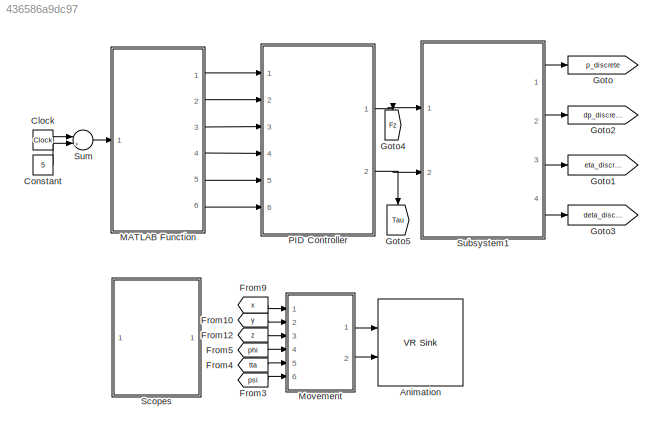
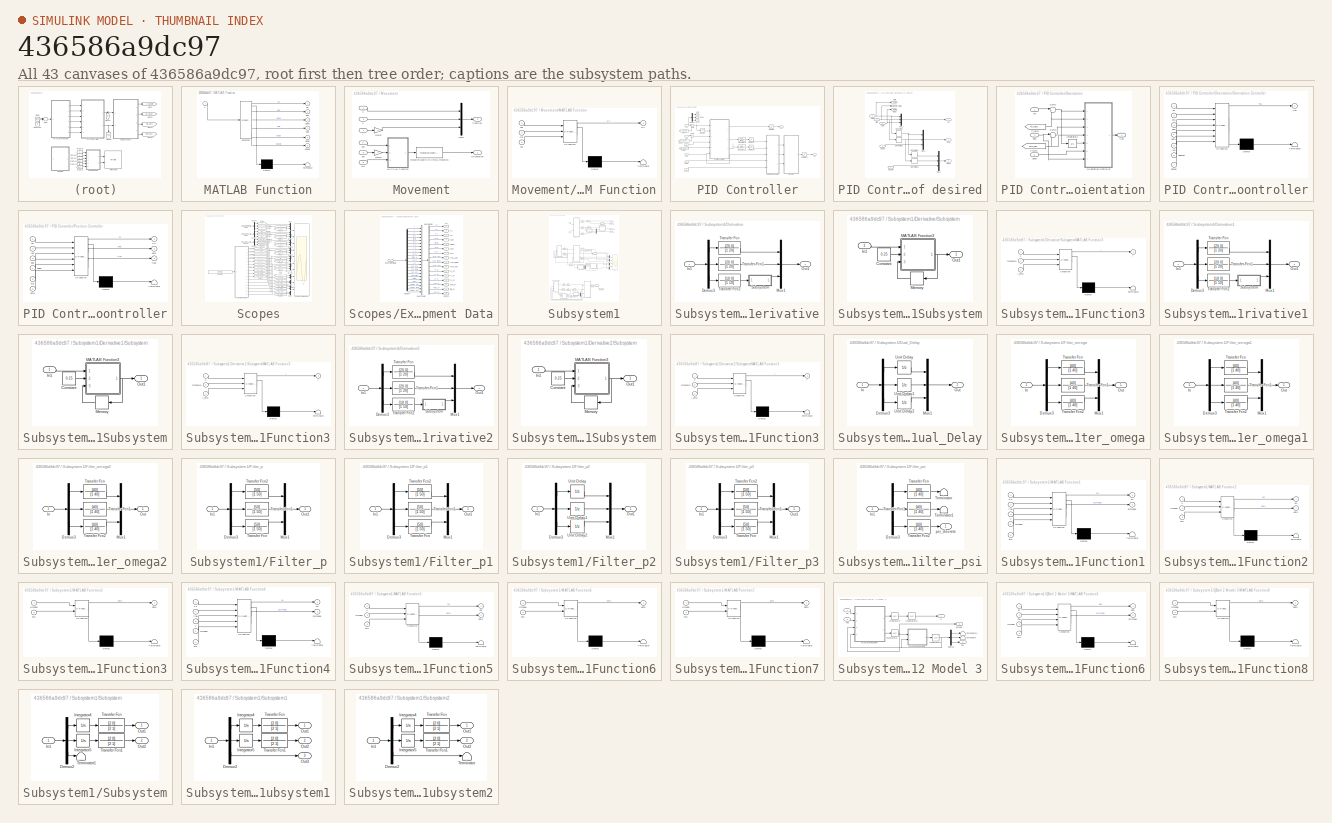
[diagram: thumbnail index - all 43 canvases of the model, root first then tree order]
MODEL slx_436586a9dc97
KIND model
CONFIG AbsTol = auto
CONFIG EnableMultiTasking = off
CONFIG FixedStep = 1e-3
CONFIG MaxStep = auto
CONFIG MinStep = auto
CONFIG RelTol = 1e-3
CONFIG SampleTimeConstraint = Unconstrained
CONFIG SolverName = ode3
CONFIG StartTime = 0.0
CONFIG StopTime = 70
BLOCK [Reference] Animation  REF=vrlib/VR Sink
  InstantiateOnLoad = on
  Ports = [2]
  SourceBlock = vrlib/VR Sink
  SourceProductBaseCode = SL
  SourceType = Virtual Reality Sink
BLOCK [Clock] Clock
BLOCK [Constant] Constant
  Value = 5
BLOCK [From] From10
  GotoTag = y
  TagVisibility = global
BLOCK [From] From12
  GotoTag = z
  TagVisibility = global
BLOCK [From] From3
  GotoTag = psi
  TagVisibility = global
BLOCK [From] From4
  GotoTag = tta
  TagVisibility = global
BLOCK [From] From5
  GotoTag = phi
  TagVisibility = global
BLOCK [From] From9
  GotoTag = x
  TagVisibility = global
BLOCK [Goto] Goto
  GotoTag = p_discrete
  TagVisibility = global
BLOCK [Goto] Goto1
  GotoTag = eta_discrete
  TagVisibility = global
BLOCK [Goto] Goto2
  GotoTag = dp_discrete
  TagVisibility = global
BLOCK [Goto] Goto3
  GotoTag = deta_discrete
  TagVisibility = global
BLOCK [Goto] Goto4
  GotoTag = Fz
  NameLocation = left
  TagVisibility = global
BLOCK [Goto] Goto5
  GotoTag = Tau
  NameLocation = left
  TagVisibility = global
BLOCK [SubSystem] MATLAB Function
  ErrorFcn = Stateflow.Translate.translate
  PermitHierarchicalResolution = ExplicitOnly
  Ports = [1, 6]
  RequestExecContextInheritance = off
  SFBlockType = MATLAB Function
  TreatAsAtomicUnit = on
BLOCK [Demux] MATLAB Function/ Demux 
  Outputs = 1
  Ports = [1, 1]
BLOCK [S-Function] MATLAB Function/ SFunction 
  EnableBusSupport = on
  FunctionName = sf_sfun
  PortCounts = [1 7]
  Ports = [1, 7]
  SFcnIsStateOwnerBlock = off
  SFunctionDeploymentMode = off
  Tag = Stateflow S-Function 1
BLOCK [Terminator] MATLAB Function/ Terminator 
BLOCK [Inport] MATLAB Function/T
BLOCK [Outport] MATLAB Function/ddpd
  Port = 3
  VectorParamsAs1DForOutWhenUnconnected = off
BLOCK [Outport] MATLAB Function/ddpsid
  Port = 6
  VectorParamsAs1DForOutWhenUnconnected = off
BLOCK [Outport] MATLAB Function/dpd
  Port = 2
  VectorParamsAs1DForOutWhenUnconnected = off
BLOCK [Outport] MATLAB Function/dpsid
  Port = 5
  VectorParamsAs1DForOutWhenUnconnected = off
BLOCK [Outport] MATLAB Function/pd
  VectorParamsAs1DForOutWhenUnconnected = off
BLOCK [Outport] MATLAB Function/psid
  Port = 4
  VectorParamsAs1DForOutWhenUnconnected = off
BLOCK [SubSystem] Movement
  Ports = [6, 2]
  RequestExecContextInheritance = off
BLOCK [Gain] Movement/Gain1
  Gain = -1
BLOCK [Gain] Movement/Gain2
  Gain = -1
BLOCK [SubSystem] Movement/MATLAB Function
  ErrorFcn = Stateflow.Translate.translate
  PermitHierarchicalResolution = ExplicitOnly
  Ports = [3, 1]
  RequestExecContextInheritance = off
  SFBlockType = MATLAB Function
  TreatAsAtomicUnit = on
BLOCK [Demux] Movement/MATLAB Function/ Demux 
  Outputs = 1
  Ports = [1, 1]
BLOCK [S-Function] Movement/MATLAB Function/ SFunction 
  EnableBusSupport = on
  FunctionName = sf_sfun
  PortCounts = [3 2]
  Ports = [3, 2]
  SFcnIsStateOwnerBlock = off
  SFunctionDeploymentMode = off
  Tag = Stateflow S-Function 2
BLOCK [Terminator] Movement/MATLAB Function/ Terminator 
BLOCK [Outport] Movement/MATLAB Function/RT
  VectorParamsAs1DForOutWhenUnconnected = off
BLOCK [Inport] Movement/MATLAB Function/phi
BLOCK [Inport] Movement/MATLAB Function/psi
  Port = 3
BLOCK [Inport] Movement/MATLAB Function/tta
  Port = 2
BLOCK [Mux] Movement/Mux7
  DisplayOption = bar
  Inputs = 3
  Ports = [3, 1]
BLOCK [Outport] Movement/Orientation
  VectorParamsAs1DForOutWhenUnconnected = off
BLOCK [Outport] Movement/Position
  Port = 2
  VectorParamsAs1DForOutWhenUnconnected = off
BLOCK [Reference] Movement/Rotation Matrix to VRML Rotation  REF=vrlib/Utilities/Rotation Matrix
to VR Rotation
  Ports = [1, 1]
  SourceBlock = vrlib/Utilities/Rotation Matrix\nto VR Rotation
  SourceProductBaseCode = SL
  SourceType = Rotation Matrix to VR Rotation
BLOCK [Inport] Movement/phi
  Port = 4
BLOCK [Inport] Movement/psi
  Port = 6
BLOCK [Inport] Movement/tta
  Port = 5
BLOCK [Inport] Movement/x
BLOCK [Inport] Movement/y
  Port = 2
BLOCK [Inport] Movement/z
  Port = 3
BLOCK [SubSystem] PID Controller
  Ports = [6, 2]
  RequestExecContextInheritance = off
BLOCK [Demux] PID Controller/Demux
  Outputs = 3
  Ports = [1, 3]
BLOCK [SubSystem] PID Controller/Derivative of desired
  Ports = [5, 3]
  RequestExecContextInheritance = off
BLOCK [Derivative] PID Controller/Derivative of desired/Derivative
BLOCK [Derivative] PID Controller/Derivative of desired/Derivative1
BLOCK [Derivative] PID Controller/Derivative of desired/Derivative2
BLOCK [Derivative] PID Controller/Derivative of desired/Derivative3
BLOCK [Goto] PID Controller/Derivative of desired/Goto
  GotoTag = phid
  TagVisibility = global
BLOCK [Goto] PID Controller/Derivative of desired/Goto1
  GotoTag = ttad
  TagVisibility = global
BLOCK [Goto] PID Controller/Derivative of desired/Goto2
  GotoTag = psid
  TagVisibility = global
BLOCK [Mux] PID Controller/Derivative of desired/Mux1
  DisplayOption = bar
  Inputs = 3
  Ports = [3, 1]
BLOCK [Mux] PID Controller/Derivative of desired/Mux2
  DisplayOption = bar
  Inputs = 3
  Ports = [3, 1]
BLOCK [Mux] PID Controller/Derivative of desired/Mux3
  DisplayOption = bar
  Inputs = 3
  Ports = [3, 1]
BLOCK [Outport] PID Controller/Derivative of desired/ddnd
  Port = 3
  VectorParamsAs1DForOutWhenUnconnected = off
BLOCK [Inport] PID Controller/Derivative of desired/ddpsid
  Port = 5
BLOCK [Outport] PID Controller/Derivative of desired/dnd
  Port = 2
  VectorParamsAs1DForOutWhenUnconnected = off
BLOCK [Inport] PID Controller/Derivative of desired/dpsid
  Port = 4
BLOCK [Outport] PID Controller/Derivative of desired/nd
  VectorParamsAs1DForOutWhenUnconnected = off
BLOCK [Inport] PID Controller/Derivative of desired/phid
BLOCK [Inport] PID Controller/Derivative of desired/psid
  Port = 3
BLOCK [Inport] PID Controller/Derivative of desired/ttad
  Port = 2
BLOCK [From] PID Controller/From
  GotoTag = p_discrete
  TagVisibility = global
BLOCK [From] PID Controller/From1
  GotoTag = dp_discrete
  TagVisibility = global
BLOCK [From] PID Controller/From2
  GotoTag = eta_discrete
  TagVisibility = global
BLOCK [Outport] PID Controller/Fz
  VectorParamsAs1DForOutWhenUnconnected = off
BLOCK [Goto] PID Controller/Goto
  GotoTag = xd
  TagVisibility = global
BLOCK [Goto] PID Controller/Goto1
  GotoTag = yd
  TagVisibility = global
BLOCK [Goto] PID Controller/Goto2
  GotoTag = zd
  TagVisibility = global
BLOCK [Integrator] PID Controller/Integrator
  InitialCondition = [0;0;0]
  Ports = [1, 1]
BLOCK [SubSystem] PID Controller/Orientation
  Ports = [3, 1]
  RequestExecContextInheritance = off
BLOCK [From] PID Controller/Orientation/From3
  GotoTag = eta_discrete
  TagVisibility = global
BLOCK [From] PID Controller/Orientation/From4
  GotoTag = deta_discrete
  TagVisibility = global
BLOCK [Integrator] PID Controller/Orientation/Integrator2
  InitialCondition = [0;0;0]
  Ports = [1, 1]
BLOCK [SubSystem] PID Controller/Orientation/Orientation Controller
  ErrorFcn = Stateflow.Translate.translate
  PermitHierarchicalResolution = ExplicitOnly
  Ports = [7, 1]
  RequestExecContextInheritance = off
  SFBlockType = MATLAB Function
  TreatAsAtomicUnit = on
BLOCK [Demux] PID Controller/Orientation/Orientation Controller/ Demux 
  Outputs = 1
  Ports = [1, 1]
BLOCK [S-Function] PID Controller/Orientation/Orientation Controller/ SFunction 
  EnableBusSupport = on
  FunctionName = sf_sfun
  PortCounts = [7 2]
  Ports = [7, 2]
  SFcnIsStateOwnerBlock = off
  SFunctionDeploymentMode = off
  Tag = Stateflow S-Function 5
BLOCK [Terminator] PID Controller/Orientation/Orientation Controller/ Terminator 
BLOCK [Outport] PID Controller/Orientation/Orientation Controller/Tau
  VectorParamsAs1DForOutWhenUnconnected = off
BLOCK [Inport] PID Controller/Orientation/Orientation Controller/ddetad
  Port = 6
BLOCK [Inport] PID Controller/Orientation/Orientation Controller/den
  Port = 3
BLOCK [Inport] PID Controller/Orientation/Orientation Controller/deta
  Port = 4
BLOCK [Inport] PID Controller/Orientation/Orientation Controller/detad
  Port = 7
BLOCK [Inport] PID Controller/Orientation/Orientation Controller/en
BLOCK [Inport] PID Controller/Orientation/Orientation Controller/eta
  Port = 2
BLOCK [Inport] PID Controller/Orientation/Orientation Controller/ien
  Port = 5
BLOCK [Sum] PID Controller/Orientation/Sum2
  Inputs = |+-
  Ports = [2, 1]
BLOCK [Sum] PID Controller/Orientation/Sum3
  Inputs = |+-
  Ports = [2, 1]
BLOCK [Outport] PID Controller/Orientation/Tau
  VectorParamsAs1DForOutWhenUnconnected = off
BLOCK [Inport] PID Controller/Orientation/ddnd
  Port = 3
BLOCK [Inport] PID Controller/Orientation/dnd
  Port = 2
BLOCK [Inport] PID Controller/Orientation/nd
BLOCK [SubSystem] PID Controller/Position Controller
  ErrorFcn = Stateflow.Translate.translate
  PermitHierarchicalResolution = ExplicitOnly
  Ports = [6, 3]
  RequestExecContextInheritance = off
  SFBlockType = MATLAB Function
  TreatAsAtomicUnit = on
BLOCK [Demux] PID Controller/Position Controller/ Demux 
  Outputs = 1
  Ports = [1, 1]
BLOCK [S-Function] PID Controller/Position Controller/ SFunction 
  EnableBusSupport = on
  FunctionName = sf_sfun
  PortCounts = [6 4]
  Ports = [6, 4]
  SFcnIsStateOwnerBlock = off
  SFunctionDeploymentMode = off
  Tag = Stateflow S-Function 8
BLOCK [Terminator] PID Controller/Position Controller/ Terminator 
BLOCK [Outport] PID Controller/Position Controller/Fz
  VectorParamsAs1DForOutWhenUnconnected = off
BLOCK [Inport] PID Controller/Position Controller/ddpd
  Port = 4
BLOCK [Inport] PID Controller/Position Controller/dep
  Port = 3
BLOCK [Inport] PID Controller/Position Controller/ep
BLOCK [Inport] PID Controller/Position Controller/eta
  Port = 5
BLOCK [Inport] PID Controller/Position Controller/iep
  Port = 2
BLOCK [Outport] PID Controller/Position Controller/phid
  Port = 2
  VectorParamsAs1DForOutWhenUnconnected = off
BLOCK [Inport] PID Controller/Position Controller/psid
  Port = 6
BLOCK [Outport] PID Controller/Position Controller/ttad
  Port = 3
  VectorParamsAs1DForOutWhenUnconnected = off
BLOCK [Saturate] PID Controller/Saturation
  Commented = through
  LowerLimit = 0
  UpperLimit = 25
BLOCK [Saturate] PID Controller/Saturation1
  Commented = through
  LowerLimit = -0.2*(25/4)
  UpperLimit = 0.2*(25/4)
BLOCK [Saturate] PID Controller/Saturation2
  LowerLimit = -0.25
  UpperLimit = 0.25
BLOCK [Saturate] PID Controller/Saturation3
  LowerLimit = -0.25
  UpperLimit = 0.25
BLOCK [Sum] PID Controller/Sum
  Inputs = |+-
  Ports = [2, 1]
BLOCK [Sum] PID Controller/Sum1
  Inputs = |+-
  Ports = [2, 1]
BLOCK [Outport] PID Controller/Tau
  Port = 2
  VectorParamsAs1DForOutWhenUnconnected = off
BLOCK [TransferFcn] PID Controller/Transfer Fcn
  Denominator = [1 40]
  Numerator = [40]
BLOCK [TransferFcn] PID Controller/Transfer Fcn1
  Denominator = [1 40]
  Numerator = [40]
BLOCK [Inport] PID Controller/ddpd
  Port = 3
BLOCK [Inport] PID Controller/ddpsid
  Port = 6
BLOCK [Inport] PID Controller/dpd
  Port = 2
BLOCK [Inport] PID Controller/dpsid
  Port = 5
BLOCK [Inport] PID Controller/pd
BLOCK [Inport] PID Controller/psid
  Port = 4
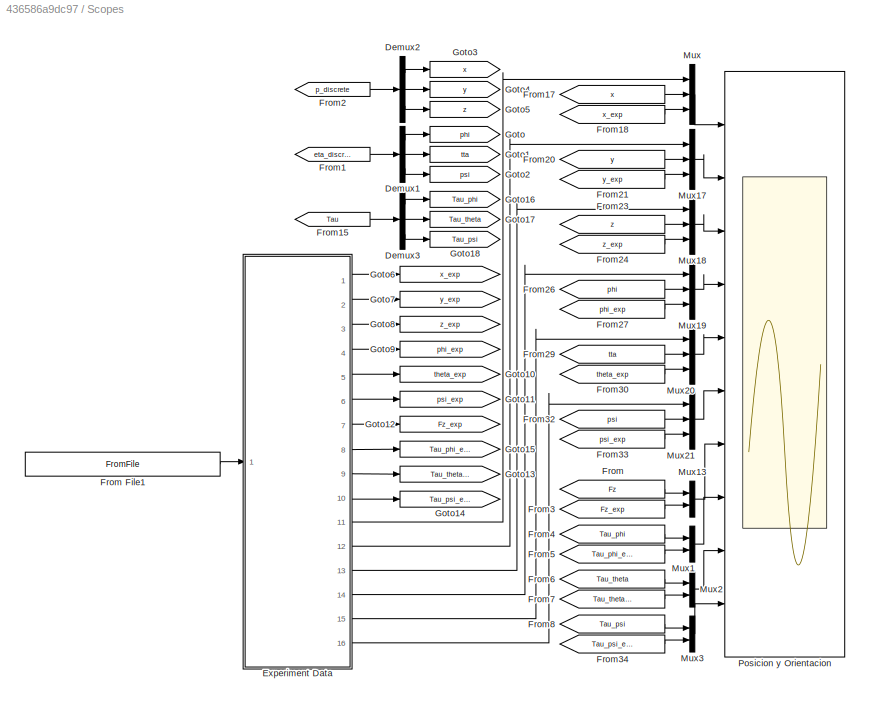
BLOCK [SubSystem] Scopes
  Ports = []
  RequestExecContextInheritance = off
BLOCK [Demux] Scopes/Demux1
  Outputs = 3
  Ports = [1, 3]
BLOCK [Demux] Scopes/Demux2
  Outputs = 3
  Ports = [1, 3]
BLOCK [Demux] Scopes/Demux3
  Outputs = 3
  Ports = [1, 3]
BLOCK [SubSystem] Scopes/Experiment Data
  Ports = [1, 16]
  RequestExecContextInheritance = off
BLOCK [Outport] Scopes/Experiment Data/<Fz>
  Port = 7
  VectorParamsAs1DForOutWhenUnconnected = off
BLOCK [Outport] Scopes/Experiment Data/<Tau_phi>
  Port = 8
  VectorParamsAs1DForOutWhenUnconnected = off
BLOCK [Outport] Scopes/Experiment Data/<Tau_psi>
  Port = 10
  VectorParamsAs1DForOutWhenUnconnected = off
BLOCK [Outport] Scopes/Experiment Data/<Tau_theta>
  Port = 9
  VectorParamsAs1DForOutWhenUnconnected = off
BLOCK [Outport] Scopes/Experiment Data/<phi>
  Port = 4
  VectorParamsAs1DForOutWhenUnconnected = off
BLOCK [Outport] Scopes/Experiment Data/<phi_d>
  Port = 14
  VectorParamsAs1DForOutWhenUnconnected = off
BLOCK [Outport] Scopes/Experiment Data/<psi>
  Port = 6
  VectorParamsAs1DForOutWhenUnconnected = off
BLOCK [Outport] Scopes/Experiment Data/<psi_d>
  Port = 16
  VectorParamsAs1DForOutWhenUnconnected = off
BLOCK [Outport] Scopes/Experiment Data/<theta>
  Port = 5
  VectorParamsAs1DForOutWhenUnconnected = off
BLOCK [Outport] Scopes/Experiment Data/<tta_d>
  Port = 15
  VectorParamsAs1DForOutWhenUnconnected = off
BLOCK [Outport] Scopes/Experiment Data/<x>
  VectorParamsAs1DForOutWhenUnconnected = off
BLOCK [Outport] Scopes/Experiment Data/<x_d>
  Port = 11
  VectorParamsAs1DForOutWhenUnconnected = off
BLOCK [Outport] Scopes/Experiment Data/<y>
  Port = 2
  VectorParamsAs1DForOutWhenUnconnected = off
BLOCK [Outport] Scopes/Experiment Data/<y_d>
  Port = 12
  VectorParamsAs1DForOutWhenUnconnected = off
BLOCK [Outport] Scopes/Experiment Data/<z>
  Port = 3
  VectorParamsAs1DForOutWhenUnconnected = off
BLOCK [Outport] Scopes/Experiment Data/<z_d>
  Port = 13
  VectorParamsAs1DForOutWhenUnconnected = off
BLOCK [BusCreator] Scopes/Experiment Data/Bus Creator
  DisplayOption = bar
  InheritFromInputs = on
  Inputs = 22
  Ports = [22, 1]
BLOCK [BusSelector] Scopes/Experiment Data/Bus Selector
  OutputSignals = x,y,z,phi,theta,psi,Fz,Tau_phi,Tau_theta,Tau_psi,x_d,y_d,z_d,phi_d,theta_d,psi_d
  Ports = [1, 16]
BLOCK [Demux] Scopes/Experiment Data/Demux4
  Outputs = 22
  Ports = [1, 22]
BLOCK [Inport] Scopes/Experiment Data/Experiment Data
BLOCK [From] Scopes/From
  GotoTag = Fz
  TagVisibility = global
BLOCK [FromFile] Scopes/From File1
  FileName = <path>
  SampleTime = 0
BLOCK [From] Scopes/From1
  GotoTag = eta_discrete
  TagVisibility = global
BLOCK [From] Scopes/From15
  GotoTag = Tau
  TagVisibility = global
BLOCK [From] Scopes/From17
  GotoTag = x
  TagVisibility = global
BLOCK [From] Scopes/From18
  GotoTag = x_exp
  TagVisibility = global
BLOCK [From] Scopes/From2
  GotoTag = p_discrete
  TagVisibility = global
BLOCK [From] Scopes/From20
  GotoTag = y
  TagVisibility = global
BLOCK [From] Scopes/From21
  GotoTag = y_exp
  TagVisibility = global
BLOCK [From] Scopes/From23
  GotoTag = z
  TagVisibility = global
BLOCK [From] Scopes/From24
  GotoTag = z_exp
  TagVisibility = global
BLOCK [From] Scopes/From26
  GotoTag = phi
  TagVisibility = global
BLOCK [From] Scopes/From27
  GotoTag = phi_exp
  TagVisibility = global
BLOCK [From] Scopes/From29
  GotoTag = tta
  TagVisibility = global
BLOCK [From] Scopes/From3
  GotoTag = Fz_exp
  TagVisibility = global
BLOCK [From] Scopes/From30
  GotoTag = theta_exp
  TagVisibility = global
BLOCK [From] Scopes/From32
  GotoTag = psi
  TagVisibility = global
BLOCK [From] Scopes/From33
  GotoTag = psi_exp
  TagVisibility = global
BLOCK [From] Scopes/From34
  GotoTag = Tau_psi_exp
  TagVisibility = global
BLOCK [From] Scopes/From4
  GotoTag = Tau_phi
  TagVisibility = global
BLOCK [From] Scopes/From5
  GotoTag = Tau_phi_exp
  TagVisibility = global
BLOCK [From] Scopes/From6
  GotoTag = Tau_theta
  TagVisibility = global
BLOCK [From] Scopes/From7
  GotoTag = Tau_theta_exp
  TagVisibility = global
BLOCK [From] Scopes/From8
  GotoTag = Tau_psi
  TagVisibility = global
BLOCK [Goto] Scopes/Goto
  GotoTag = phi
  TagVisibility = global
BLOCK [Goto] Scopes/Goto1
  GotoTag = tta
  TagVisibility = global
BLOCK [Goto] Scopes/Goto10
  GotoTag = theta_exp
  TagVisibility = global
BLOCK [Goto] Scopes/Goto11
  GotoTag = psi_exp
  TagVisibility = global
BLOCK [Goto] Scopes/Goto12
  GotoTag = Fz_exp
  TagVisibility = global
BLOCK [Goto] Scopes/Goto13
  GotoTag = Tau_theta_exp
  TagVisibility = global
BLOCK [Goto] Scopes/Goto14
  GotoTag = Tau_psi_exp
  TagVisibility = global
BLOCK [Goto] Scopes/Goto15
  GotoTag = Tau_phi_exp
  TagVisibility = global
BLOCK [Goto] Scopes/Goto16
  GotoTag = Tau_phi
  TagVisibility = global
BLOCK [Goto] Scopes/Goto17
  GotoTag = Tau_theta
  TagVisibility = global
BLOCK [Goto] Scopes/Goto18
  GotoTag = Tau_psi
  TagVisibility = global
BLOCK [Goto] Scopes/Goto2
  GotoTag = psi
  TagVisibility = global
BLOCK [Goto] Scopes/Goto3
  GotoTag = x
  TagVisibility = global
BLOCK [Goto] Scopes/Goto4
  GotoTag = y
  TagVisibility = global
BLOCK [Goto] Scopes/Goto5
  GotoTag = z
  TagVisibility = global
BLOCK [Goto] Scopes/Goto6
  GotoTag = x_exp
  TagVisibility = global
BLOCK [Goto] Scopes/Goto7
  GotoTag = y_exp
  TagVisibility = global
BLOCK [Goto] Scopes/Goto8
  GotoTag = z_exp
  TagVisibility = global
BLOCK [Goto] Scopes/Goto9
  GotoTag = phi_exp
  TagVisibility = global
BLOCK [Mux] Scopes/Mux
  DisplayOption = bar
  Inputs = 3
  Ports = [3, 1]
BLOCK [Mux] Scopes/Mux1
  DisplayOption = bar
  Inputs = 2
  Ports = [2, 1]
BLOCK [Mux] Scopes/Mux13
  DisplayOption = bar
  Inputs = 2
  Ports = [2, 1]
BLOCK [Mux] Scopes/Mux17
  DisplayOption = bar
  Inputs = 3
  Ports = [3, 1]
BLOCK [Mux] Scopes/Mux18
  DisplayOption = bar
  Inputs = 3
  Ports = [3, 1]
BLOCK [Mux] Scopes/Mux19
  DisplayOption = bar
  Inputs = 3
  Ports = [3, 1]
BLOCK [Mux] Scopes/Mux2
  DisplayOption = bar
  Inputs = 2
  Ports = [2, 1]
BLOCK [Mux] Scopes/Mux20
  DisplayOption = bar
  Inputs = 3
  Ports = [3, 1]
BLOCK [Mux] Scopes/Mux21
  DisplayOption = bar
  Inputs = 3
  Ports = [3, 1]
BLOCK [Mux] Scopes/Mux3
  DisplayOption = bar
  Inputs = 2
  Ports = [2, 1]
BLOCK [Scope] Scopes/Posicion y Orientacion
  Floating = off
  NumInputPorts = 10
  Ports = [10]
  ScopeSpecificationString = Simulink.scopes.TimeScopeBlockCfg('CurrentConfiguration', extmgr.ConfigurationSet(extmgr.Configuration('Core','General UI',true),extmgr.Configuration('Core','Source UI',true),extmgr.Configuration('Sources','WiredSimulink',true,'DataLoggingVariableName','T4E1_Nominal','DataLogging',true,'DataLoggingSaveFormat','StructureWithTime'),extmgr.Configuration('Visuals','Time Domain',true,'SerializedDisplay...<+9375ch>
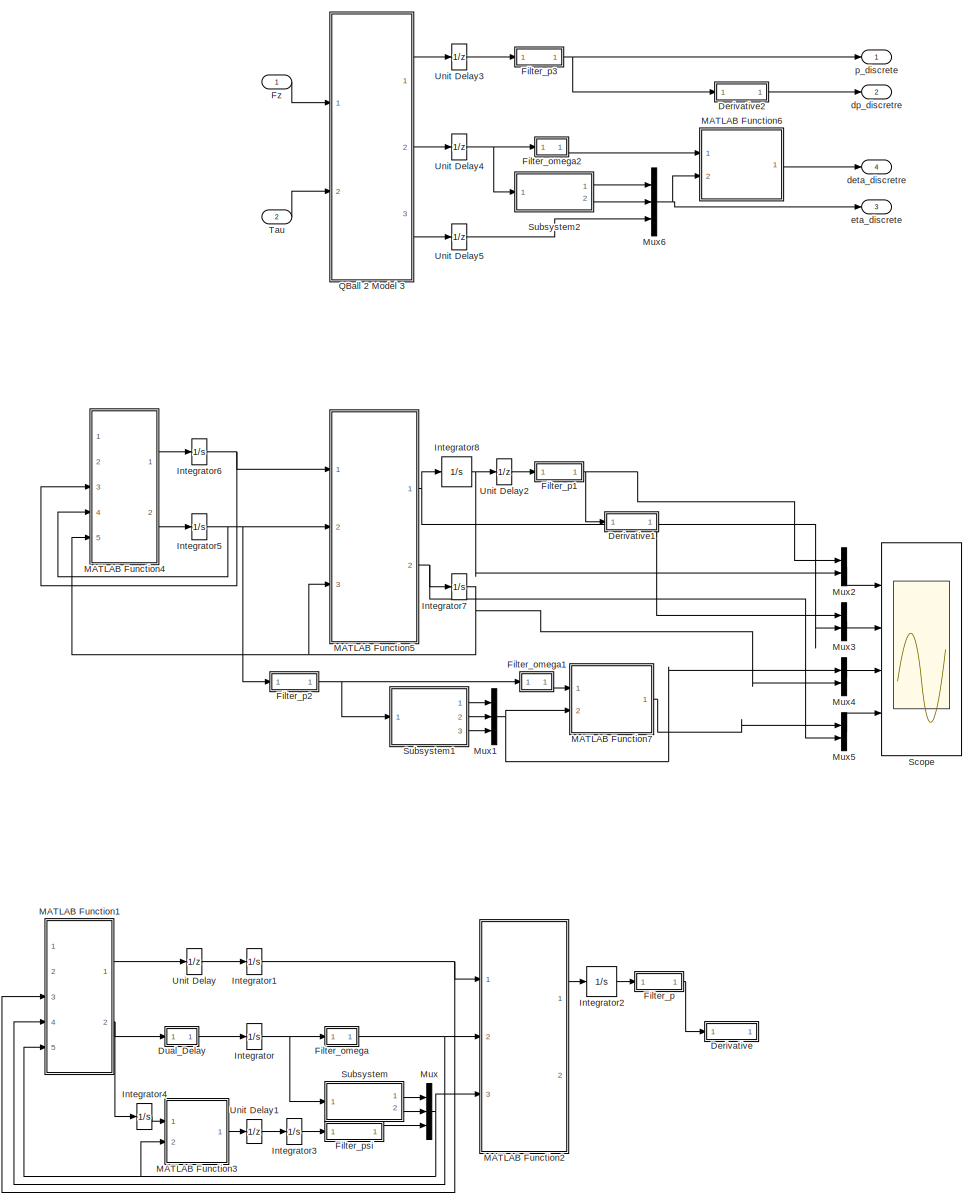
[diagram: Subsystem1 - part 1/1, most of the canvas]
BLOCK [SubSystem] Subsystem1
  Ports = [2, 4]
  RequestExecContextInheritance = off
BLOCK [SubSystem] Subsystem1/Derivative
  Commented = on
  Ports = [1, 1]
  RequestExecContextInheritance = off
BLOCK [Demux] Subsystem1/Derivative/Demux3
  Outputs = 3
  Ports = [1, 3]
BLOCK [Inport] Subsystem1/Derivative/In1
BLOCK [Mux] Subsystem1/Derivative/Mux1
  DisplayOption = bar
  Inputs = 3
  Ports = [3, 1]
BLOCK [Outport] Subsystem1/Derivative/Out1
  VectorParamsAs1DForOutWhenUnconnected = off
BLOCK [SubSystem] Subsystem1/Derivative/Subsystem
  Ports = [1, 1]
  RequestExecContextInheritance = off
BLOCK [Constant] Subsystem1/Derivative/Subsystem/Constant
  Value = 0.25
BLOCK [Inport] Subsystem1/Derivative/Subsystem/In1
BLOCK [SubSystem] Subsystem1/Derivative/Subsystem/MATLAB Function3
  ErrorFcn = Stateflow.Translate.translate
  PermitHierarchicalResolution = ExplicitOnly
  Ports = [3, 1]
  RequestExecContextInheritance = off
  SFBlockType = MATLAB Function
  TreatAsAtomicUnit = on
BLOCK [Demux] Subsystem1/Derivative/Subsystem/MATLAB Function3/ Demux 
  Outputs = 1
  Ports = [1, 1]
BLOCK [S-Function] Subsystem1/Derivative/Subsystem/MATLAB Function3/ SFunction 
  EnableBusSupport = on
  FunctionName = sf_sfun
  PortCounts = [3 2]
  Ports = [3, 2]
  SFcnIsStateOwnerBlock = off
  SFunctionDeploymentMode = off
  Tag = Stateflow S-Function 4
BLOCK [Terminator] Subsystem1/Derivative/Subsystem/MATLAB Function3/ Terminator 
BLOCK [Inport] Subsystem1/Derivative/Subsystem/MATLAB Function3/threshold
  Port = 2
BLOCK [Inport] Subsystem1/Derivative/Subsystem/MATLAB Function3/u
BLOCK [Outport] Subsystem1/Derivative/Subsystem/MATLAB Function3/y
  VectorParamsAs1DForOutWhenUnconnected = off
BLOCK [Inport] Subsystem1/Derivative/Subsystem/MATLAB Function3/y_prev
  Port = 3
BLOCK [Memory] Subsystem1/Derivative/Subsystem/Memory
  NameLocation = top
BLOCK [Outport] Subsystem1/Derivative/Subsystem/Out1
  VectorParamsAs1DForOutWhenUnconnected = off
BLOCK [TransferFcn] Subsystem1/Derivative/Transfer Fcn
  Denominator = [1 20]
  Numerator = [20 0]
BLOCK [TransferFcn] Subsystem1/Derivative/Transfer Fcn1
  Denominator = [1 20]
  Numerator = [20 0]
BLOCK [TransferFcn] Subsystem1/Derivative/Transfer Fcn2
  Denominator = [1 10]
  Numerator = [10 0]
BLOCK [SubSystem] Subsystem1/Derivative1
  Commented = on
  Ports = [1, 1]
  RequestExecContextInheritance = off
BLOCK [Demux] Subsystem1/Derivative1/Demux3
  Outputs = 3
  Ports = [1, 3]
BLOCK [Inport] Subsystem1/Derivative1/In1
BLOCK [Mux] Subsystem1/Derivative1/Mux1
  DisplayOption = bar
  Inputs = 3
  Ports = [3, 1]
BLOCK [Outport] Subsystem1/Derivative1/Out1
  VectorParamsAs1DForOutWhenUnconnected = off
BLOCK [SubSystem] Subsystem1/Derivative1/Subsystem
  Ports = [1, 1]
  RequestExecContextInheritance = off
BLOCK [Constant] Subsystem1/Derivative1/Subsystem/Constant
  Value = 0.25
BLOCK [Inport] Subsystem1/Derivative1/Subsystem/In1
BLOCK [SubSystem] Subsystem1/Derivative1/Subsystem/MATLAB Function3
  ErrorFcn = Stateflow.Translate.translate
  PermitHierarchicalResolution = ExplicitOnly
  Ports = [3, 1]
  RequestExecContextInheritance = off
  SFBlockType = MATLAB Function
  TreatAsAtomicUnit = on
BLOCK [Demux] Subsystem1/Derivative1/Subsystem/MATLAB Function3/ Demux 
  Outputs = 1
  Ports = [1, 1]
BLOCK [S-Function] Subsystem1/Derivative1/Subsystem/MATLAB Function3/ SFunction 
  EnableBusSupport = on
  FunctionName = sf_sfun
  PortCounts = [3 2]
  Ports = [3, 2]
  SFcnIsStateOwnerBlock = off
  SFunctionDeploymentMode = off
  Tag = Stateflow S-Function 11
BLOCK [Terminator] Subsystem1/Derivative1/Subsystem/MATLAB Function3/ Terminator 
BLOCK [Inport] Subsystem1/Derivative1/Subsystem/MATLAB Function3/threshold
  Port = 2
BLOCK [Inport] Subsystem1/Derivative1/Subsystem/MATLAB Function3/u
BLOCK [Outport] Subsystem1/Derivative1/Subsystem/MATLAB Function3/y
  VectorParamsAs1DForOutWhenUnconnected = off
BLOCK [Inport] Subsystem1/Derivative1/Subsystem/MATLAB Function3/y_prev
  Port = 3
BLOCK [Memory] Subsystem1/Derivative1/Subsystem/Memory
  NameLocation = top
BLOCK [Outport] Subsystem1/Derivative1/Subsystem/Out1
  VectorParamsAs1DForOutWhenUnconnected = off
BLOCK [TransferFcn] Subsystem1/Derivative1/Transfer Fcn
  Denominator = [1 20]
  Numerator = [20 0]
BLOCK [TransferFcn] Subsystem1/Derivative1/Transfer Fcn1
  Denominator = [1 20]
  Numerator = [20 0]
BLOCK [TransferFcn] Subsystem1/Derivative1/Transfer Fcn2
  Denominator = [1 10]
  Numerator = [10 0]
BLOCK [SubSystem] Subsystem1/Derivative2
  Ports = [1, 1]
  RequestExecContextInheritance = off
BLOCK [Demux] Subsystem1/Derivative2/Demux3
  Outputs = 3
  Ports = [1, 3]
BLOCK [Inport] Subsystem1/Derivative2/In1
BLOCK [Mux] Subsystem1/Derivative2/Mux1
  DisplayOption = bar
  Inputs = 3
  Ports = [3, 1]
BLOCK [Outport] Subsystem1/Derivative2/Out1
  VectorParamsAs1DForOutWhenUnconnected = off
BLOCK [SubSystem] Subsystem1/Derivative2/Subsystem
  Ports = [1, 1]
  RequestExecContextInheritance = off
BLOCK [Constant] Subsystem1/Derivative2/Subsystem/Constant
  Value = 0.25
BLOCK [Inport] Subsystem1/Derivative2/Subsystem/In1
BLOCK [SubSystem] Subsystem1/Derivative2/Subsystem/MATLAB Function3
  ErrorFcn = Stateflow.Translate.translate
  PermitHierarchicalResolution = ExplicitOnly
  Ports = [3, 1]
  RequestExecContextInheritance = off
  SFBlockType = MATLAB Function
  TreatAsAtomicUnit = on
BLOCK [Demux] Subsystem1/Derivative2/Subsystem/MATLAB Function3/ Demux 
  Outputs = 1
  Ports = [1, 1]
BLOCK [S-Function] Subsystem1/Derivative2/Subsystem/MATLAB Function3/ SFunction 
  EnableBusSupport = on
  FunctionName = sf_sfun
  PortCounts = [3 2]
  Ports = [3, 2]
  SFcnIsStateOwnerBlock = off
  SFunctionDeploymentMode = off
  Tag = Stateflow S-Function 15
BLOCK [Terminator] Subsystem1/Derivative2/Subsystem/MATLAB Function3/ Terminator 
BLOCK [Inport] Subsystem1/Derivative2/Subsystem/MATLAB Function3/threshold
  Port = 2
BLOCK [Inport] Subsystem1/Derivative2/Subsystem/MATLAB Function3/u
BLOCK [Outport] Subsystem1/Derivative2/Subsystem/MATLAB Function3/y
  VectorParamsAs1DForOutWhenUnconnected = off
BLOCK [Inport] Subsystem1/Derivative2/Subsystem/MATLAB Function3/y_prev
  Port = 3
BLOCK [Memory] Subsystem1/Derivative2/Subsystem/Memory
  NameLocation = top
BLOCK [Outport] Subsystem1/Derivative2/Subsystem/Out1
  VectorParamsAs1DForOutWhenUnconnected = off
BLOCK [TransferFcn] Subsystem1/Derivative2/Transfer Fcn
  Denominator = [1 20]
  Numerator = [20 0]
BLOCK [TransferFcn] Subsystem1/Derivative2/Transfer Fcn1
  Denominator = [1 20]
  Numerator = [20 0]
BLOCK [TransferFcn] Subsystem1/Derivative2/Transfer Fcn2
  Denominator = [1 10]
  Numerator = [10 0]
BLOCK [SubSystem] Subsystem1/Dual_Delay
  Commented = on
  Ports = [1, 1]
  RequestExecContextInheritance = off
BLOCK [Demux] Subsystem1/Dual_Delay/Demux3
  Outputs = 3
  Ports = [1, 3]
BLOCK [Inport] Subsystem1/Dual_Delay/In
BLOCK [Mux] Subsystem1/Dual_Delay/Mux1
  DisplayOption = bar
  Inputs = 3
  Ports = [3, 1]
BLOCK [Outport] Subsystem1/Dual_Delay/Out
  VectorParamsAs1DForOutWhenUnconnected = off
BLOCK [UnitDelay] Subsystem1/Dual_Delay/Unit Delay
  HasFrameUpgradeWarning = on
  SampleTime = 0.002
BLOCK [UnitDelay] Subsystem1/Dual_Delay/Unit Delay1
  HasFrameUpgradeWarning = on
  SampleTime = 0.002
BLOCK [UnitDelay] Subsystem1/Dual_Delay/Unit Delay2
  HasFrameUpgradeWarning = on
  SampleTime = 0.033
BLOCK [SubSystem] Subsystem1/Filter_omega
  Commented = on
  Ports = [1, 1]
  RequestExecContextInheritance = off
BLOCK [Demux] Subsystem1/Filter_omega/Demux3
  Outputs = 3
  Ports = [1, 3]
BLOCK [Inport] Subsystem1/Filter_omega/In
BLOCK [Mux] Subsystem1/Filter_omega/Mux1
  DisplayOption = bar
  Inputs = 3
  Ports = [3, 1]
BLOCK [Outport] Subsystem1/Filter_omega/Out
  VectorParamsAs1DForOutWhenUnconnected = off
BLOCK [TransferFcn] Subsystem1/Filter_omega/Transfer Fcn
  Denominator = [1 40]
  Numerator = [40]
BLOCK [TransferFcn] Subsystem1/Filter_omega/Transfer Fcn1
  Denominator = [1 40]
  Numerator = [40]
BLOCK [TransferFcn] Subsystem1/Filter_omega/Transfer Fcn2
  Denominator = [1 40]
  Numerator = [40]
BLOCK [SubSystem] Subsystem1/Filter_omega1
  Commented = on
  Ports = [1, 1]
  RequestExecContextInheritance = off
BLOCK [Demux] Subsystem1/Filter_omega1/Demux3
  Outputs = 3
  Ports = [1, 3]
BLOCK [Inport] Subsystem1/Filter_omega1/In
BLOCK [Mux] Subsystem1/Filter_omega1/Mux1
  DisplayOption = bar
  Inputs = 3
  Ports = [3, 1]
BLOCK [Outport] Subsystem1/Filter_omega1/Out
  VectorParamsAs1DForOutWhenUnconnected = off
BLOCK [TransferFcn] Subsystem1/Filter_omega1/Transfer Fcn
  Denominator = [1 40]
  Numerator = [40]
BLOCK [TransferFcn] Subsystem1/Filter_omega1/Transfer Fcn1
  Denominator = [1 40]
  Numerator = [40]
BLOCK [TransferFcn] Subsystem1/Filter_omega1/Transfer Fcn2
  Denominator = [1 40]
  Numerator = [40]
BLOCK [SubSystem] Subsystem1/Filter_omega2
  Ports = [1, 1]
  RequestExecContextInheritance = off
BLOCK [Demux] Subsystem1/Filter_omega2/Demux3
  Outputs = 3
  Ports = [1, 3]
BLOCK [Inport] Subsystem1/Filter_omega2/In
BLOCK [Mux] Subsystem1/Filter_omega2/Mux1
  DisplayOption = bar
  Inputs = 3
  Ports = [3, 1]
BLOCK [Outport] Subsystem1/Filter_omega2/Out
  VectorParamsAs1DForOutWhenUnconnected = off
BLOCK [TransferFcn] Subsystem1/Filter_omega2/Transfer Fcn
  Denominator = [1 40]
  Numerator = [40]
BLOCK [TransferFcn] Subsystem1/Filter_omega2/Transfer Fcn1
  Denominator = [1 40]
  Numerator = [40]
BLOCK [TransferFcn] Subsystem1/Filter_omega2/Transfer Fcn2
  Denominator = [1 40]
  Numerator = [40]
BLOCK [SubSystem] Subsystem1/Filter_p
  Commented = on
  Ports = [1, 1]
  RequestExecContextInheritance = off
BLOCK [Demux] Subsystem1/Filter_p/Demux3
  Outputs = 3
  Ports = [1, 3]
BLOCK [Inport] Subsystem1/Filter_p/In1
BLOCK [Mux] Subsystem1/Filter_p/Mux1
  DisplayOption = bar
  Inputs = 3
  Ports = [3, 1]
BLOCK [Outport] Subsystem1/Filter_p/Out1
  VectorParamsAs1DForOutWhenUnconnected = off
BLOCK [TransferFcn] Subsystem1/Filter_p/Transfer Fcn
  Denominator = [1 50]
  Numerator = [50]
BLOCK [TransferFcn] Subsystem1/Filter_p/Transfer Fcn1
  Denominator = [1 50]
  Numerator = [50]
BLOCK [TransferFcn] Subsystem1/Filter_p/Transfer Fcn2
  Denominator = [1 50]
  Numerator = [50]
BLOCK [SubSystem] Subsystem1/Filter_p1
  Commented = on
  Ports = [1, 1]
  RequestExecContextInheritance = off
BLOCK [Demux] Subsystem1/Filter_p1/Demux3
  Outputs = 3
  Ports = [1, 3]
BLOCK [Inport] Subsystem1/Filter_p1/In1
BLOCK [Mux] Subsystem1/Filter_p1/Mux1
  DisplayOption = bar
  Inputs = 3
  Ports = [3, 1]
BLOCK [Outport] Subsystem1/Filter_p1/Out1
  VectorParamsAs1DForOutWhenUnconnected = off
BLOCK [TransferFcn] Subsystem1/Filter_p1/Transfer Fcn
  Denominator = [1 50]
  Numerator = [50]
BLOCK [TransferFcn] Subsystem1/Filter_p1/Transfer Fcn1
  Denominator = [1 50]
  Numerator = [50]
BLOCK [TransferFcn] Subsystem1/Filter_p1/Transfer Fcn2
  Denominator = [1 50]
  Numerator = [50]
BLOCK [SubSystem] Subsystem1/Filter_p2
  Commented = on
  Ports = [1, 1]
  RequestExecContextInheritance = off
BLOCK [Demux] Subsystem1/Filter_p2/Demux3
  Outputs = 3
  Ports = [1, 3]
BLOCK [Inport] Subsystem1/Filter_p2/In1
BLOCK [Mux] Subsystem1/Filter_p2/Mux1
  DisplayOption = bar
  Inputs = 3
  Ports = [3, 1]
BLOCK [Outport] Subsystem1/Filter_p2/Out1
  VectorParamsAs1DForOutWhenUnconnected = off
BLOCK [UnitDelay] Subsystem1/Filter_p2/Unit Delay
  HasFrameUpgradeWarning = on
  SampleTime = 0.002
BLOCK [UnitDelay] Subsystem1/Filter_p2/Unit Delay1
  HasFrameUpgradeWarning = on
  SampleTime = 0.002
BLOCK [UnitDelay] Subsystem1/Filter_p2/Unit Delay2
  HasFrameUpgradeWarning = on
  SampleTime = 0.033
BLOCK [SubSystem] Subsystem1/Filter_p3
  Ports = [1, 1]
  RequestExecContextInheritance = off
BLOCK [Demux] Subsystem1/Filter_p3/Demux3
  Outputs = 3
  Ports = [1, 3]
BLOCK [Inport] Subsystem1/Filter_p3/In1
BLOCK [Mux] Subsystem1/Filter_p3/Mux1
  DisplayOption = bar
  Inputs = 3
  Ports = [3, 1]
BLOCK [Outport] Subsystem1/Filter_p3/Out1
  VectorParamsAs1DForOutWhenUnconnected = off
BLOCK [TransferFcn] Subsystem1/Filter_p3/Transfer Fcn
  Denominator = [1 50]
  Numerator = [50]
BLOCK [TransferFcn] Subsystem1/Filter_p3/Transfer Fcn1
  Denominator = [1 50]
  Numerator = [50]
BLOCK [TransferFcn] Subsystem1/Filter_p3/Transfer Fcn2
  Denominator = [1 50]
  Numerator = [50]
BLOCK [SubSystem] Subsystem1/Filter_psi
  Commented = on
  Ports = [1, 1]
  RequestExecContextInheritance = off
BLOCK [Demux] Subsystem1/Filter_psi/Demux3
  Outputs = 3
  Ports = [1, 3]
BLOCK [Inport] Subsystem1/Filter_psi/In1
BLOCK [Terminator] Subsystem1/Filter_psi/Terminator
BLOCK [Terminator] Subsystem1/Filter_psi/Terminator1
BLOCK [TransferFcn] Subsystem1/Filter_psi/Transfer Fcn
  Denominator = [1 40]
  Numerator = [40]
BLOCK [TransferFcn] Subsystem1/Filter_psi/Transfer Fcn1
  Denominator = [1 40]
  Numerator = [40]
BLOCK [TransferFcn] Subsystem1/Filter_psi/Transfer Fcn2
  Denominator = [1 40]
  Numerator = [40]
BLOCK [Outport] Subsystem1/Filter_psi/psi_discrete
  VectorParamsAs1DForOutWhenUnconnected = off
BLOCK [Inport] Subsystem1/Fz
BLOCK [Integrator] Subsystem1/Integrator
  Commented = on
  InitialCondition = [0;0;0]
  Ports = [1, 1]
BLOCK [Integrator] Subsystem1/Integrator1
  Commented = on
  InitialCondition = [0;0;0]
  Ports = [1, 1]
BLOCK [Integrator] Subsystem1/Integrator2
  Commented = on
  InitialCondition = [0;0;0.3]
  LimitOutput = on
  LowerSaturationLimit = [-inf;-inf;0.3]
  Ports = [1, 1]
BLOCK [Integrator] Subsystem1/Integrator3
  Commented = on
  InitialCondition = [0;0;0]
  Ports = [1, 1]
BLOCK [Integrator] Subsystem1/Integrator4
  Commented = on
  InitialCondition = [0;0;0]
  Ports = [1, 1]
BLOCK [Integrator] Subsystem1/Integrator5
  Commented = on
  InitialCondition = [0;0;0]
  Ports = [1, 1]
BLOCK [Integrator] Subsystem1/Integrator6
  Commented = on
  InitialCondition = [0;0;0]
  Ports = [1, 1]
BLOCK [Integrator] Subsystem1/Integrator7
  Commented = on
  InitialCondition = [0;0;0]
  Ports = [1, 1]
BLOCK [Integrator] Subsystem1/Integrator8
  Commented = on
  InitialCondition = [0;0;0.3]
  LimitOutput = on
  LowerSaturationLimit = [-inf;-inf;0.3]
  Ports = [1, 1]
BLOCK [SubSystem] Subsystem1/MATLAB Function1
  Commented = on
  ErrorFcn = Stateflow.Translate.translate
  PermitHierarchicalResolution = ExplicitOnly
  Ports = [5, 2]
  RequestExecContextInheritance = off
  SFBlockType = MATLAB Function
  TreatAsAtomicUnit = on
BLOCK [Demux] Subsystem1/MATLAB Function1/ Demux 
  Outputs = 1
  Ports = [1, 1]
BLOCK [S-Function] Subsystem1/MATLAB Function1/ SFunction 
  EnableBusSupport = on
  FunctionName = sf_sfun
  PortCounts = [5 3]
  Ports = [5, 3]
  SFcnIsStateOwnerBlock = off
  SFunctionDeploymentMode = off
  Tag = Stateflow S-Function 7
BLOCK [Terminator] Subsystem1/MATLAB Function1/ Terminator 
BLOCK [Inport] Subsystem1/MATLAB Function1/Fz
BLOCK [Inport] Subsystem1/MATLAB Function1/Omega
  Port = 4
BLOCK [Inport] Subsystem1/MATLAB Function1/Tau
  Port = 2
BLOCK [Inport] Subsystem1/MATLAB Function1/V
  Port = 3
BLOCK [Outport] Subsystem1/MATLAB Function1/dOmega
  Port = 2
  VectorParamsAs1DForOutWhenUnconnected = off
BLOCK [Outport] Subsystem1/MATLAB Function1/dV
  VectorParamsAs1DForOutWhenUnconnected = off
BLOCK [Inport] Subsystem1/MATLAB Function1/eta
  Port = 5
BLOCK [SubSystem] Subsystem1/MATLAB Function2
  Commented = on
  ErrorFcn = Stateflow.Translate.translate
  PermitHierarchicalResolution = ExplicitOnly
  Ports = [3, 2]
  RequestExecContextInheritance = off
  SFBlockType = MATLAB Function
  TreatAsAtomicUnit = on
BLOCK [Demux] Subsystem1/MATLAB Function2/ Demux 
  Outputs = 1
  Ports = [1, 1]
BLOCK [S-Function] Subsystem1/MATLAB Function2/ SFunction 
  EnableBusSupport = on
  FunctionName = sf_sfun
  PortCounts = [3 3]
  Ports = [3, 3]
  SFcnIsStateOwnerBlock = off
  SFunctionDeploymentMode = off
  Tag = Stateflow S-Function 9
BLOCK [Terminator] Subsystem1/MATLAB Function2/ Terminator 
BLOCK [Inport] Subsystem1/MATLAB Function2/Omega
  Port = 2
BLOCK [Inport] Subsystem1/MATLAB Function2/V
BLOCK [Outport] Subsystem1/MATLAB Function2/deta
  Port = 2
  VectorParamsAs1DForOutWhenUnconnected = off
BLOCK [Outport] Subsystem1/MATLAB Function2/dxi
  VectorParamsAs1DForOutWhenUnconnected = off
BLOCK [Inport] Subsystem1/MATLAB Function2/eta
  Port = 3
BLOCK [SubSystem] Subsystem1/MATLAB Function3
  Commented = on
  ErrorFcn = Stateflow.Translate.translate
  PermitHierarchicalResolution = ExplicitOnly
  Ports = [2, 1]
  RequestExecContextInheritance = off
  SFBlockType = MATLAB Function
  TreatAsAtomicUnit = on
BLOCK [Demux] Subsystem1/MATLAB Function3/ Demux 
  Outputs = 1
  Ports = [1, 1]
BLOCK [S-Function] Subsystem1/MATLAB Function3/ SFunction 
  EnableBusSupport = on
  FunctionName = sf_sfun
  PortCounts = [2 2]
  Ports = [2, 2]
  SFcnIsStateOwnerBlock = off
  SFunctionDeploymentMode = off
  Tag = Stateflow S-Function 6
BLOCK [Terminator] Subsystem1/MATLAB Function3/ Terminator 
BLOCK [Inport] Subsystem1/MATLAB Function3/Omega
BLOCK [Outport] Subsystem1/MATLAB Function3/deta
  VectorParamsAs1DForOutWhenUnconnected = off
BLOCK [Inport] Subsystem1/MATLAB Function3/eta
  Port = 2
BLOCK [SubSystem] Subsystem1/MATLAB Function4
  Commented = on
  ErrorFcn = Stateflow.Translate.translate
  PermitHierarchicalResolution = ExplicitOnly
  Ports = [5, 2]
  RequestExecContextInheritance = off
  SFBlockType = MATLAB Function
  TreatAsAtomicUnit = on
BLOCK [Demux] Subsystem1/MATLAB Function4/ Demux 
  Outputs = 1
  Ports = [1, 1]
BLOCK [S-Function] Subsystem1/MATLAB Function4/ SFunction 
  EnableBusSupport = on
  FunctionName = sf_sfun
  PortCounts = [5 3]
  Ports = [5, 3]
  SFcnIsStateOwnerBlock = off
  SFunctionDeploymentMode = off
  Tag = Stateflow S-Function 3
BLOCK [Terminator] Subsystem1/MATLAB Function4/ Terminator 
BLOCK [Inport] Subsystem1/MATLAB Function4/Fz
BLOCK [Inport] Subsystem1/MATLAB Function4/Omega
  Port = 4
BLOCK [Inport] Subsystem1/MATLAB Function4/Tau
  Port = 2
BLOCK [Inport] Subsystem1/MATLAB Function4/V
  Port = 3
BLOCK [Outport] Subsystem1/MATLAB Function4/dOmega
  Port = 2
  VectorParamsAs1DForOutWhenUnconnected = off
BLOCK [Outport] Subsystem1/MATLAB Function4/dV
  VectorParamsAs1DForOutWhenUnconnected = off
BLOCK [Inport] Subsystem1/MATLAB Function4/eta
  Port = 5
BLOCK [SubSystem] Subsystem1/MATLAB Function5
  Commented = on
  ErrorFcn = Stateflow.Translate.translate
  PermitHierarchicalResolution = ExplicitOnly
  Ports = [3, 2]
  RequestExecContextInheritance = off
  SFBlockType = MATLAB Function
  TreatAsAtomicUnit = on
BLOCK [Demux] Subsystem1/MATLAB Function5/ Demux 
  Outputs = 1
  Ports = [1, 1]
BLOCK [S-Function] Subsystem1/MATLAB Function5/ SFunction 
  EnableBusSupport = on
  FunctionName = sf_sfun
  PortCounts = [3 3]
  Ports = [3, 3]
  SFcnIsStateOwnerBlock = off
  SFunctionDeploymentMode = off
  Tag = Stateflow S-Function 10
BLOCK [Terminator] Subsystem1/MATLAB Function5/ Terminator 
BLOCK [Inport] Subsystem1/MATLAB Function5/Omega
  Port = 2
BLOCK [Inport] Subsystem1/MATLAB Function5/V
BLOCK [Outport] Subsystem1/MATLAB Function5/deta
  Port = 2
  VectorParamsAs1DForOutWhenUnconnected = off
BLOCK [Outport] Subsystem1/MATLAB Function5/dxi
  VectorParamsAs1DForOutWhenUnconnected = off
BLOCK [Inport] Subsystem1/MATLAB Function5/eta
  Port = 3
BLOCK [SubSystem] Subsystem1/MATLAB Function6
  ErrorFcn = Stateflow.Translate.translate
  PermitHierarchicalResolution = ExplicitOnly
  Ports = [2, 1]
  RequestExecContextInheritance = off
  SFBlockType = MATLAB Function
  TreatAsAtomicUnit = on
BLOCK [Demux] Subsystem1/MATLAB Function6/ Demux 
  Outputs = 1
  Ports = [1, 1]
BLOCK [S-Function] Subsystem1/MATLAB Function6/ SFunction 
  EnableBusSupport = on
  FunctionName = sf_sfun
  PortCounts = [2 2]
  Ports = [2, 2]
  SFcnIsStateOwnerBlock = off
  SFunctionDeploymentMode = off
  Tag = Stateflow S-Function 16
BLOCK [Terminator] Subsystem1/MATLAB Function6/ Terminator 
BLOCK [Inport] Subsystem1/MATLAB Function6/Omega
BLOCK [Outport] Subsystem1/MATLAB Function6/deta
  VectorParamsAs1DForOutWhenUnconnected = off
BLOCK [Inport] Subsystem1/MATLAB Function6/eta
  Port = 2
BLOCK [SubSystem] Subsystem1/MATLAB Function7
  Commented = on
  ErrorFcn = Stateflow.Translate.translate
  PermitHierarchicalResolution = ExplicitOnly
  Ports = [2, 1]
  RequestExecContextInheritance = off
  SFBlockType = MATLAB Function
  TreatAsAtomicUnit = on
BLOCK [Demux] Subsystem1/MATLAB Function7/ Demux 
  Outputs = 1
  Ports = [1, 1]
BLOCK [S-Function] Subsystem1/MATLAB Function7/ SFunction 
  EnableBusSupport = on
  FunctionName = sf_sfun
  PortCounts = [2 2]
  Ports = [2, 2]
  SFcnIsStateOwnerBlock = off
  SFunctionDeploymentMode = off
  Tag = Stateflow S-Function 13
BLOCK [Terminator] Subsystem1/MATLAB Function7/ Terminator 
BLOCK [Inport] Subsystem1/MATLAB Function7/Omega
BLOCK [Outport] Subsystem1/MATLAB Function7/deta
  VectorParamsAs1DForOutWhenUnconnected = off
BLOCK [Inport] Subsystem1/MATLAB Function7/eta
  Port = 2
BLOCK [Mux] Subsystem1/Mux
  Commented = on
  DisplayOption = bar
  Inputs = 3
  Ports = [3, 1]
BLOCK [Mux] Subsystem1/Mux1
  Commented = on
  DisplayOption = bar
  Inputs = 3
  Ports = [3, 1]
BLOCK [Mux] Subsystem1/Mux2
  Commented = on
  DisplayOption = bar
  Inputs = 2
  Ports = [2, 1]
BLOCK [Mux] Subsystem1/Mux3
  Commented = on
  DisplayOption = bar
  Inputs = 2
  Ports = [2, 1]
BLOCK [Mux] Subsystem1/Mux4
  Commented = on
  DisplayOption = bar
  Inputs = 2
  Ports = [2, 1]
BLOCK [Mux] Subsystem1/Mux5
  Commented = on
  DisplayOption = bar
  Inputs = 2
  Ports = [2, 1]
BLOCK [Mux] Subsystem1/Mux6
  DisplayOption = bar
  Inputs = 3
  Ports = [3, 1]
BLOCK [SubSystem] Subsystem1/QBall 2 Model 3
  Ports = [2, 3]
  RequestExecContextInheritance = off
BLOCK [Demux] Subsystem1/QBall 2 Model 3/Demux
  Outputs = 3
  Ports = [1, 3]
BLOCK [Inport] Subsystem1/QBall 2 Model 3/Fz
BLOCK [Integrator] Subsystem1/QBall 2 Model 3/Integrator10
  InitialCondition = [0;0;0.3]
  LimitOutput = on
  LowerSaturationLimit = [-inf;-inf;0.3]
  Ports = [1, 1]
BLOCK [Integrator] Subsystem1/QBall 2 Model 3/Integrator11
  InitialCondition = [0;0;0]
  Ports = [1, 1]
BLOCK [Integrator] Subsystem1/QBall 2 Model 3/Integrator12
  InitialCondition = [0;0;0]
  Ports = [1, 1]
BLOCK [Integrator] Subsystem1/QBall 2 Model 3/Integrator9
  InitialCondition = [0;0;0]
  Ports = [1, 1]
BLOCK [SubSystem] Subsystem1/QBall 2 Model 3/MATLAB Function6
  ErrorFcn = Stateflow.Translate.translate
  PermitHierarchicalResolution = ExplicitOnly
  Ports = [4, 2]
  RequestExecContextInheritance = off
  SFBlockType = MATLAB Function
  TreatAsAtomicUnit = on
BLOCK [Demux] Subsystem1/QBall 2 Model 3/MATLAB Function6/ Demux 
  Outputs = 1
  Ports = [1, 1]
BLOCK [S-Function] Subsystem1/QBall 2 Model 3/MATLAB Function6/ SFunction 
  EnableBusSupport = on
  FunctionName = sf_sfun
  PortCounts = [4 3]
  Ports = [4, 3]
  SFcnIsStateOwnerBlock = off
  SFunctionDeploymentMode = off
  Tag = Stateflow S-Function 12
BLOCK [Terminator] Subsystem1/QBall 2 Model 3/MATLAB Function6/ Terminator 
BLOCK [Inport] Subsystem1/QBall 2 Model 3/MATLAB Function6/Fz
BLOCK [Inport] Subsystem1/QBall 2 Model 3/MATLAB Function6/Omega
  Port = 3
BLOCK [Inport] Subsystem1/QBall 2 Model 3/MATLAB Function6/Tau
  Port = 2
BLOCK [Outport] Subsystem1/QBall 2 Model 3/MATLAB Function6/dOmega
  Port = 2
  VectorParamsAs1DForOutWhenUnconnected = off
BLOCK [Outport] Subsystem1/QBall 2 Model 3/MATLAB Function6/ddp
  VectorParamsAs1DForOutWhenUnconnected = off
BLOCK [Inport] Subsystem1/QBall 2 Model 3/MATLAB Function6/eta
  Port = 4
BLOCK [SubSystem] Subsystem1/QBall 2 Model 3/MATLAB Function8
  ErrorFcn = Stateflow.Translate.translate
  PermitHierarchicalResolution = ExplicitOnly
  Ports = [2, 1]
  RequestExecContextInheritance = off
  SFBlockType = MATLAB Function
  TreatAsAtomicUnit = on
BLOCK [Demux] Subsystem1/QBall 2 Model 3/MATLAB Function8/ Demux 
  Outputs = 1
  Ports = [1, 1]
BLOCK [S-Function] Subsystem1/QBall 2 Model 3/MATLAB Function8/ SFunction 
  EnableBusSupport = on
  FunctionName = sf_sfun
  PortCounts = [2 2]
  Ports = [2, 2]
  SFcnIsStateOwnerBlock = off
  SFunctionDeploymentMode = off
  Tag = Stateflow S-Function 14
BLOCK [Terminator] Subsystem1/QBall 2 Model 3/MATLAB Function8/ Terminator 
BLOCK [Inport] Subsystem1/QBall 2 Model 3/MATLAB Function8/Omega
BLOCK [Outport] Subsystem1/QBall 2 Model 3/MATLAB Function8/deta
  VectorParamsAs1DForOutWhenUnconnected = off
BLOCK [Inport] Subsystem1/QBall 2 Model 3/MATLAB Function8/eta
  Port = 2
BLOCK [Inport] Subsystem1/QBall 2 Model 3/Tau
  Port = 2
BLOCK [Terminator] Subsystem1/QBall 2 Model 3/Terminator
BLOCK [Terminator] Subsystem1/QBall 2 Model 3/Terminator1
BLOCK [Outport] Subsystem1/QBall 2 Model 3/omega
  Port = 2
  VectorParamsAs1DForOutWhenUnconnected = off
BLOCK [Outport] Subsystem1/QBall 2 Model 3/p
  VectorParamsAs1DForOutWhenUnconnected = off
BLOCK [Outport] Subsystem1/QBall 2 Model 3/psi
  Port = 3
  VectorParamsAs1DForOutWhenUnconnected = off
BLOCK [Scope] Subsystem1/Scope
  Commented = on
  Floating = off
  NumInputPorts = 4
  Ports = [4]
  ScopeSpecificationString = Simulink.scopes.TimeScopeBlockCfg('CurrentConfiguration', extmgr.ConfigurationSet(extmgr.Configuration('Core','General UI',true),extmgr.Configuration('Core','Source UI',true),extmgr.Configuration('Sources','WiredSimulink',true),extmgr.Configuration('Visuals','Time Domain',true,'SerializedDisplays',{struct('MinYLimReal','-0.95122','MaxYLimReal','1.27802','YLabelReal','','MinYLimMag','0','MaxYLimMag...<+1937ch>
BLOCK [SubSystem] Subsystem1/Subsystem
  Commented = on
  Ports = [1, 2]
  RequestExecContextInheritance = off
BLOCK [Demux] Subsystem1/Subsystem/Demux2
  Outputs = 3
  Ports = [1, 3]
BLOCK [Inport] Subsystem1/Subsystem/In1
BLOCK [Integrator] Subsystem1/Subsystem/Integrator4
  Ports = [1, 1]
BLOCK [Integrator] Subsystem1/Subsystem/Integrator5
  Ports = [1, 1]
BLOCK [Outport] Subsystem1/Subsystem/Out1
  VectorParamsAs1DForOutWhenUnconnected = off
BLOCK [Outport] Subsystem1/Subsystem/Out2
  Port = 2
  VectorParamsAs1DForOutWhenUnconnected = off
BLOCK [Terminator] Subsystem1/Subsystem/Terminator1
BLOCK [TransferFcn] Subsystem1/Subsystem/Transfer Fcn
  Denominator = [2 1]
  Numerator = [2 0]
BLOCK [TransferFcn] Subsystem1/Subsystem/Transfer Fcn1
  Denominator = [2 1]
  Numerator = [2 0]
BLOCK [SubSystem] Subsystem1/Subsystem1
  Commented = on
  Ports = [1, 3]
  RequestExecContextInheritance = off
BLOCK [Demux] Subsystem1/Subsystem1/Demux2
  Outputs = 3
  Ports = [1, 3]
BLOCK [Inport] Subsystem1/Subsystem1/In1
BLOCK [Integrator] Subsystem1/Subsystem1/Integrator4
  Ports = [1, 1]
BLOCK [Integrator] Subsystem1/Subsystem1/Integrator5
  Ports = [1, 1]
BLOCK [Outport] Subsystem1/Subsystem1/Out1
  VectorParamsAs1DForOutWhenUnconnected = off
BLOCK [Outport] Subsystem1/Subsystem1/Out2
  Port = 2
  VectorParamsAs1DForOutWhenUnconnected = off
BLOCK [Outport] Subsystem1/Subsystem1/Out3
  Port = 3
  VectorParamsAs1DForOutWhenUnconnected = off
BLOCK [TransferFcn] Subsystem1/Subsystem1/Transfer Fcn
  Denominator = [2 1]
  Numerator = [2 0]
BLOCK [TransferFcn] Subsystem1/Subsystem1/Transfer Fcn1
  Denominator = [2 1]
  Numerator = [2 0]
BLOCK [SubSystem] Subsystem1/Subsystem2
  Ports = [1, 2]
  RequestExecContextInheritance = off
BLOCK [Demux] Subsystem1/Subsystem2/Demux2
  Outputs = 3
  Ports = [1, 3]
BLOCK [Inport] Subsystem1/Subsystem2/In1
BLOCK [Integrator] Subsystem1/Subsystem2/Integrator4
  Ports = [1, 1]
BLOCK [Integrator] Subsystem1/Subsystem2/Integrator5
  Ports = [1, 1]
BLOCK [Outport] Subsystem1/Subsystem2/Out1
  VectorParamsAs1DForOutWhenUnconnected = off
BLOCK [Outport] Subsystem1/Subsystem2/Out2
  Port = 2
  VectorParamsAs1DForOutWhenUnconnected = off
BLOCK [Terminator] Subsystem1/Subsystem2/Terminator
BLOCK [TransferFcn] Subsystem1/Subsystem2/Transfer Fcn
  Denominator = [2 1]
  Numerator = [2 0]
BLOCK [TransferFcn] Subsystem1/Subsystem2/Transfer Fcn1
  Denominator = [2 1]
  Numerator = [2 0]
BLOCK [Inport] Subsystem1/Tau
  Port = 2
BLOCK [UnitDelay] Subsystem1/Unit Delay
  Commented = on
  HasFrameUpgradeWarning = on
  SampleTime = 0.033
BLOCK [UnitDelay] Subsystem1/Unit Delay1
  Commented = on
  HasFrameUpgradeWarning = on
  SampleTime = 0.033
BLOCK [UnitDelay] Subsystem1/Unit Delay2
  Commented = on
  HasFrameUpgradeWarning = on
  SampleTime = 0.033
BLOCK [UnitDelay] Subsystem1/Unit Delay3
  HasFrameUpgradeWarning = on
  InitialCondition = [0;0;0.3]
  SampleTime = 0.033
BLOCK [UnitDelay] Subsystem1/Unit Delay4
  HasFrameUpgradeWarning = on
  InitialCondition = [0;0;0]
  SampleTime = 0.002
BLOCK [UnitDelay] Subsystem1/Unit Delay5
  HasFrameUpgradeWarning = on
  SampleTime = 0.033
BLOCK [Outport] Subsystem1/deta_discretre
  Port = 4
  VectorParamsAs1DForOutWhenUnconnected = off
BLOCK [Outport] Subsystem1/dp_discretre
  Port = 2
  VectorParamsAs1DForOutWhenUnconnected = off
BLOCK [Outport] Subsystem1/eta_discrete
  Port = 3
  VectorParamsAs1DForOutWhenUnconnected = off
BLOCK [Outport] Subsystem1/p_discrete
  VectorParamsAs1DForOutWhenUnconnected = off
BLOCK [Sum] Sum
  Inputs = |+-
  Ports = [2, 1]
LINE Clock:1 -> Sum:1
LINE Constant:1 -> Sum:2
LINE From10:1 -> Movement:2
LINE From12:1 -> Movement:3
LINE From3:1 -> Movement:6
LINE From4:1 -> Movement:5
LINE From5:1 -> Movement:4
LINE From9:1 -> Movement:1
LINE MATLAB Function:1 -> PID Controller:1
LINE MATLAB Function:2 -> PID Controller:2
LINE MATLAB Function:3 -> PID Controller:3
LINE MATLAB Function:4 -> PID Controller:4
LINE MATLAB Function:5 -> PID Controller:5
LINE MATLAB Function:6 -> PID Controller:6
LINE Movement/Gain1:1 -> Movement/Mux7:3
LINE Movement/Gain2:1 -> Movement/MATLAB Function:2
LINE Movement/MATLAB Function:1 -> Movement/Rotation Matrix to VRML Rotation:1
LINE Movement/Mux7:1 -> Movement/Position:1
LINE Movement/Rotation Matrix to VRML Rotation:1 -> Movement/Orientation:1
LINE Movement/phi:1 -> Movement/MATLAB Function:1
LINE Movement/psi:1 -> Movement/Gain2:1
LINE Movement/tta:1 -> Movement/MATLAB Function:3
LINE Movement/x:1 -> Movement/Mux7:1
LINE Movement/y:1 -> Movement/Gain1:1
LINE Movement/z:1 -> Movement/Mux7:2
LINE Movement:1 -> Animation:1
LINE Movement:2 -> Animation:2
LINE PID Controller/Demux:1 -> PID Controller/Goto:1
LINE PID Controller/Demux:2 -> PID Controller/Goto1:1
LINE PID Controller/Demux:3 -> PID Controller/Goto2:1
NET PID Controller/Derivative of desired/Derivative1:1 -> PID Controller/Derivative of desired/Derivative3:1, PID Controller/Derivative of desired/Mux3:2
LINE PID Controller/Derivative of desired/Derivative2:1 -> PID Controller/Derivative of desired/Mux1:1
LINE PID Controller/Derivative of desired/Derivative3:1 -> PID Controller/Derivative of desired/Mux1:2
NET PID Controller/Derivative of desired/Derivative:1 -> PID Controller/Derivative of desired/Derivative2:1, PID Controller/Derivative of desired/Mux3:1
LINE PID Controller/Derivative of desired/Mux1:1 -> PID Controller/Derivative of desired/ddnd:1
LINE PID Controller/Derivative of desired/Mux2:1 -> PID Controller/Derivative of desired/nd:1
LINE PID Controller/Derivative of desired/Mux3:1 -> PID Controller/Derivative of desired/dnd:1
LINE PID Controller/Derivative of desired/ddpsid:1 -> PID Controller/Derivative of desired/Mux1:3
LINE PID Controller/Derivative of desired/dpsid:1 -> PID Controller/Derivative of desired/Mux3:3
NET PID Controller/Derivative of desired/phid:1 -> PID Controller/Derivative of desired/Derivative:1, PID Controller/Derivative of desired/Goto:1, PID Controller/Derivative of desired/Mux2:1
NET PID Controller/Derivative of desired/psid:1 -> PID Controller/Derivative of desired/Goto2:1, PID Controller/Derivative of desired/Mux2:3
NET PID Controller/Derivative of desired/ttad:1 -> PID Controller/Derivative of desired/Derivative1:1, PID Controller/Derivative of desired/Goto1:1, PID Controller/Derivative of desired/Mux2:2
LINE PID Controller/Derivative of desired:1 -> PID Controller/Orientation:1
LINE PID Controller/Derivative of desired:2 -> PID Controller/Orientation:2
LINE PID Controller/Derivative of desired:3 -> PID Controller/Orientation:3
LINE PID Controller/From1:1 -> PID Controller/Sum1:2
LINE PID Controller/From2:1 -> PID Controller/Position Controller:5
LINE PID Controller/From:1 -> PID Controller/Sum:2
LINE PID Controller/Integrator:1 -> PID Controller/Position Controller:2
NET PID Controller/Orientation/From3:1 -> PID Controller/Orientation/Orientation Controller:2, PID Controller/Orientation/Sum2:2
NET PID Controller/Orientation/From4:1 -> PID Controller/Orientation/Orientation Controller:4, PID Controller/Orientation/Sum3:2
LINE PID Controller/Orientation/Integrator2:1 -> PID Controller/Orientation/Orientation Controller:5
LINE PID Controller/Orientation/Orientation Controller:1 -> PID Controller/Orientation/Tau:1
NET PID Controller/Orientation/Sum2:1 -> PID Controller/Orientation/Integrator2:1, PID Controller/Orientation/Orientation Controller:1
LINE PID Controller/Orientation/Sum3:1 -> PID Controller/Orientation/Orientation Controller:3
LINE PID Controller/Orientation/ddnd:1 -> PID Controller/Orientation/Orientation Controller:6
NET PID Controller/Orientation/dnd:1 -> PID Controller/Orientation/Orientation Controller:7, PID Controller/Orientation/Sum3:1
LINE PID Controller/Orientation/nd:1 -> PID Controller/Orientation/Sum2:1
LINE PID Controller/Orientation:1 -> PID Controller/Saturation1:1
LINE PID Controller/Position Controller:1 -> PID Controller/Saturation:1
LINE PID Controller/Position Controller:2 -> PID Controller/Transfer Fcn:1
LINE PID Controller/Position Controller:3 -> PID Controller/Transfer Fcn1:1
LINE PID Controller/Saturation1:1 -> PID Controller/Tau:1
LINE PID Controller/Saturation2:1 -> PID Controller/Derivative of desired:1
LINE PID Controller/Saturation3:1 -> PID Controller/Derivative of desired:2
LINE PID Controller/Saturation:1 -> PID Controller/Fz:1
LINE PID Controller/Sum1:1 -> PID Controller/Position Controller:3
NET PID Controller/Sum:1 -> PID Controller/Integrator:1, PID Controller/Position Controller:1
LINE PID Controller/Transfer Fcn1:1 -> PID Controller/Saturation3:1
LINE PID Controller/Transfer Fcn:1 -> PID Controller/Saturation2:1
LINE PID Controller/ddpd:1 -> PID Controller/Position Controller:4
LINE PID Controller/ddpsid:1 -> PID Controller/Derivative of desired:5
LINE PID Controller/dpd:1 -> PID Controller/Sum1:1
LINE PID Controller/dpsid:1 -> PID Controller/Derivative of desired:4
NET PID Controller/pd:1 -> PID Controller/Demux:1, PID Controller/Sum:1
NET PID Controller/psid:1 -> PID Controller/Derivative of desired:3, PID Controller/Position Controller:6
NET PID Controller:1 -> Goto4:1, Subsystem1:1
NET PID Controller:2 -> Goto5:1, Subsystem1:2
LINE Scopes/Demux1:1 -> Scopes/Goto:1
LINE Scopes/Demux1:2 -> Scopes/Goto1:1
LINE Scopes/Demux1:3 -> Scopes/Goto2:1
LINE Scopes/Demux2:1 -> Scopes/Goto3:1
LINE Scopes/Demux2:2 -> Scopes/Goto4:1
LINE Scopes/Demux2:3 -> Scopes/Goto5:1
LINE Scopes/Demux3:1 -> Scopes/Goto16:1
LINE Scopes/Demux3:2 -> Scopes/Goto17:1
LINE Scopes/Demux3:3 -> Scopes/Goto18:1
LINE Scopes/Experiment Data/Bus Creator:1 -> Scopes/Experiment Data/Bus Selector:1
LINE Scopes/Experiment Data/Bus Selector:1 -> Scopes/Experiment Data/<x>:1
LINE Scopes/Experiment Data/Bus Selector:10 -> Scopes/Experiment Data/<Tau_psi>:1
LINE Scopes/Experiment Data/Bus Selector:11 -> Scopes/Experiment Data/<x_d>:1
LINE Scopes/Experiment Data/Bus Selector:12 -> Scopes/Experiment Data/<y_d>:1
LINE Scopes/Experiment Data/Bus Selector:13 -> Scopes/Experiment Data/<z_d>:1
LINE Scopes/Experiment Data/Bus Selector:14 -> Scopes/Experiment Data/<phi_d>:1
LINE Scopes/Experiment Data/Bus Selector:15 -> Scopes/Experiment Data/<tta_d>:1
LINE Scopes/Experiment Data/Bus Selector:16 -> Scopes/Experiment Data/<psi_d>:1
LINE Scopes/Experiment Data/Bus Selector:2 -> Scopes/Experiment Data/<y>:1
LINE Scopes/Experiment Data/Bus Selector:3 -> Scopes/Experiment Data/<z>:1
LINE Scopes/Experiment Data/Bus Selector:4 -> Scopes/Experiment Data/<phi>:1
LINE Scopes/Experiment Data/Bus Selector:5 -> Scopes/Experiment Data/<theta>:1
LINE Scopes/Experiment Data/Bus Selector:6 -> Scopes/Experiment Data/<psi>:1
LINE Scopes/Experiment Data/Bus Selector:7 -> Scopes/Experiment Data/<Fz>:1
LINE Scopes/Experiment Data/Bus Selector:8 -> Scopes/Experiment Data/<Tau_phi>:1
LINE Scopes/Experiment Data/Bus Selector:9 -> Scopes/Experiment Data/<Tau_theta>:1
LINE Scopes/Experiment Data/Demux4:1 -> Scopes/Experiment Data/Bus Creator:1
LINE Scopes/Experiment Data/Demux4:10 -> Scopes/Experiment Data/Bus Creator:10
LINE Scopes/Experiment Data/Demux4:11 -> Scopes/Experiment Data/Bus Creator:11
LINE Scopes/Experiment Data/Demux4:12 -> Scopes/Experiment Data/Bus Creator:12
LINE Scopes/Experiment Data/Demux4:13 -> Scopes/Experiment Data/Bus Creator:13
LINE Scopes/Experiment Data/Demux4:14 -> Scopes/Experiment Data/Bus Creator:14
LINE Scopes/Experiment Data/Demux4:15 -> Scopes/Experiment Data/Bus Creator:15
LINE Scopes/Experiment Data/Demux4:16 -> Scopes/Experiment Data/Bus Creator:16
LINE Scopes/Experiment Data/Demux4:17 -> Scopes/Experiment Data/Bus Creator:17
LINE Scopes/Experiment Data/Demux4:18 -> Scopes/Experiment Data/Bus Creator:18
LINE Scopes/Experiment Data/Demux4:19 -> Scopes/Experiment Data/Bus Creator:19
LINE Scopes/Experiment Data/Demux4:2 -> Scopes/Experiment Data/Bus Creator:2
LINE Scopes/Experiment Data/Demux4:20 -> Scopes/Experiment Data/Bus Creator:20
LINE Scopes/Experiment Data/Demux4:21 -> Scopes/Experiment Data/Bus Creator:21
LINE Scopes/Experiment Data/Demux4:22 -> Scopes/Experiment Data/Bus Creator:22
LINE Scopes/Experiment Data/Demux4:3 -> Scopes/Experiment Data/Bus Creator:3
LINE Scopes/Experiment Data/Demux4:4 -> Scopes/Experiment Data/Bus Creator:4
LINE Scopes/Experiment Data/Demux4:5 -> Scopes/Experiment Data/Bus Creator:5
LINE Scopes/Experiment Data/Demux4:6 -> Scopes/Experiment Data/Bus Creator:6
LINE Scopes/Experiment Data/Demux4:7 -> Scopes/Experiment Data/Bus Creator:7
LINE Scopes/Experiment Data/Demux4:8 -> Scopes/Experiment Data/Bus Creator:8
LINE Scopes/Experiment Data/Demux4:9 -> Scopes/Experiment Data/Bus Creator:9
LINE Scopes/Experiment Data/Experiment Data:1 -> Scopes/Experiment Data/Demux4:1
LINE Scopes/Experiment Data:1 -> Scopes/Goto6:1
LINE Scopes/Experiment Data:10 -> Scopes/Goto14:1
LINE Scopes/Experiment Data:11 -> Scopes/Mux:1
LINE Scopes/Experiment Data:12 -> Scopes/Mux17:1
LINE Scopes/Experiment Data:13 -> Scopes/Mux18:1
LINE Scopes/Experiment Data:14 -> Scopes/Mux19:1
LINE Scopes/Experiment Data:15 -> Scopes/Mux20:1
LINE Scopes/Experiment Data:16 -> Scopes/Mux21:1
LINE Scopes/Experiment Data:2 -> Scopes/Goto7:1
LINE Scopes/Experiment Data:3 -> Scopes/Goto8:1
LINE Scopes/Experiment Data:4 -> Scopes/Goto9:1
LINE Scopes/Experiment Data:5 -> Scopes/Goto10:1
LINE Scopes/Experiment Data:6 -> Scopes/Goto11:1
LINE Scopes/Experiment Data:7 -> Scopes/Goto12:1
LINE Scopes/Experiment Data:8 -> Scopes/Goto15:1
LINE Scopes/Experiment Data:9 -> Scopes/Goto13:1
LINE Scopes/From File1:1 -> Scopes/Experiment Data:1
LINE Scopes/From15:1 -> Scopes/Demux3:1
LINE Scopes/From17:1 -> Scopes/Mux:2
LINE Scopes/From18:1 -> Scopes/Mux:3
LINE Scopes/From1:1 -> Scopes/Demux1:1
LINE Scopes/From20:1 -> Scopes/Mux17:2
LINE Scopes/From21:1 -> Scopes/Mux17:3
LINE Scopes/From23:1 -> Scopes/Mux18:2
LINE Scopes/From24:1 -> Scopes/Mux18:3
LINE Scopes/From26:1 -> Scopes/Mux19:2
LINE Scopes/From27:1 -> Scopes/Mux19:3
LINE Scopes/From29:1 -> Scopes/Mux20:2
LINE Scopes/From2:1 -> Scopes/Demux2:1
LINE Scopes/From30:1 -> Scopes/Mux20:3
LINE Scopes/From32:1 -> Scopes/Mux21:2
LINE Scopes/From33:1 -> Scopes/Mux21:3
LINE Scopes/From34:1 -> Scopes/Mux3:2
LINE Scopes/From3:1 -> Scopes/Mux13:2
LINE Scopes/From4:1 -> Scopes/Mux1:1
LINE Scopes/From5:1 -> Scopes/Mux1:2
LINE Scopes/From6:1 -> Scopes/Mux2:1
LINE Scopes/From7:1 -> Scopes/Mux2:2
LINE Scopes/From8:1 -> Scopes/Mux3:1
LINE Scopes/From:1 -> Scopes/Mux13:1
LINE Scopes/Mux13:1 -> Scopes/Posicion y Orientacion:7
LINE Scopes/Mux17:1 -> Scopes/Posicion y Orientacion:2
LINE Scopes/Mux18:1 -> Scopes/Posicion y Orientacion:3
LINE Scopes/Mux19:1 -> Scopes/Posicion y Orientacion:4
LINE Scopes/Mux1:1 -> Scopes/Posicion y Orientacion:8
LINE Scopes/Mux20:1 -> Scopes/Posicion y Orientacion:5
LINE Scopes/Mux21:1 -> Scopes/Posicion y Orientacion:6
LINE Scopes/Mux2:1 -> Scopes/Posicion y Orientacion:9
LINE Scopes/Mux3:1 -> Scopes/Posicion y Orientacion:10
LINE Scopes/Mux:1 -> Scopes/Posicion y Orientacion:1
LINE Subsystem1/Derivative/Demux3:1 -> Subsystem1/Derivative/Transfer Fcn:1
LINE Subsystem1/Derivative/Demux3:2 -> Subsystem1/Derivative/Transfer Fcn1:1
LINE Subsystem1/Derivative/Demux3:3 -> Subsystem1/Derivative/Transfer Fcn2:1
LINE Subsystem1/Derivative/In1:1 -> Subsystem1/Derivative/Demux3:1
LINE Subsystem1/Derivative/Mux1:1 -> Subsystem1/Derivative/Out1:1
LINE Subsystem1/Derivative/Subsystem/Constant:1 -> Subsystem1/Derivative/Subsystem/MATLAB Function3:2
LINE Subsystem1/Derivative/Subsystem/In1:1 -> Subsystem1/Derivative/Subsystem/MATLAB Function3:1
NET Subsystem1/Derivative/Subsystem/MATLAB Function3:1 -> Subsystem1/Derivative/Subsystem/Memory:1, Subsystem1/Derivative/Subsystem/Out1:1
LINE Subsystem1/Derivative/Subsystem/Memory:1 -> Subsystem1/Derivative/Subsystem/MATLAB Function3:3
LINE Subsystem1/Derivative/Subsystem:1 -> Subsystem1/Derivative/Mux1:3
LINE Subsystem1/Derivative/Transfer Fcn1:1 -> Subsystem1/Derivative/Mux1:2
LINE Subsystem1/Derivative/Transfer Fcn2:1 -> Subsystem1/Derivative/Subsystem:1
LINE Subsystem1/Derivative/Transfer Fcn:1 -> Subsystem1/Derivative/Mux1:1
LINE Subsystem1/Derivative1/Demux3:1 -> Subsystem1/Derivative1/Transfer Fcn:1
LINE Subsystem1/Derivative1/Demux3:2 -> Subsystem1/Derivative1/Transfer Fcn1:1
LINE Subsystem1/Derivative1/Demux3:3 -> Subsystem1/Derivative1/Transfer Fcn2:1
LINE Subsystem1/Derivative1/In1:1 -> Subsystem1/Derivative1/Demux3:1
LINE Subsystem1/Derivative1/Mux1:1 -> Subsystem1/Derivative1/Out1:1
LINE Subsystem1/Derivative1/Subsystem/Constant:1 -> Subsystem1/Derivative1/Subsystem/MATLAB Function3:2
LINE Subsystem1/Derivative1/Subsystem/In1:1 -> Subsystem1/Derivative1/Subsystem/MATLAB Function3:1
NET Subsystem1/Derivative1/Subsystem/MATLAB Function3:1 -> Subsystem1/Derivative1/Subsystem/Memory:1, Subsystem1/Derivative1/Subsystem/Out1:1
LINE Subsystem1/Derivative1/Subsystem/Memory:1 -> Subsystem1/Derivative1/Subsystem/MATLAB Function3:3
LINE Subsystem1/Derivative1/Subsystem:1 -> Subsystem1/Derivative1/Mux1:3
LINE Subsystem1/Derivative1/Transfer Fcn1:1 -> Subsystem1/Derivative1/Mux1:2
LINE Subsystem1/Derivative1/Transfer Fcn2:1 -> Subsystem1/Derivative1/Subsystem:1
LINE Subsystem1/Derivative1/Transfer Fcn:1 -> Subsystem1/Derivative1/Mux1:1
LINE Subsystem1/Derivative1:1 -> Subsystem1/Mux3:1
LINE Subsystem1/Derivative2/Demux3:1 -> Subsystem1/Derivative2/Transfer Fcn:1
LINE Subsystem1/Derivative2/Demux3:2 -> Subsystem1/Derivative2/Transfer Fcn1:1
LINE Subsystem1/Derivative2/Demux3:3 -> Subsystem1/Derivative2/Transfer Fcn2:1
LINE Subsystem1/Derivative2/In1:1 -> Subsystem1/Derivative2/Demux3:1
LINE Subsystem1/Derivative2/Mux1:1 -> Subsystem1/Derivative2/Out1:1
LINE Subsystem1/Derivative2/Subsystem/Constant:1 -> Subsystem1/Derivative2/Subsystem/MATLAB Function3:2
LINE Subsystem1/Derivative2/Subsystem/In1:1 -> Subsystem1/Derivative2/Subsystem/MATLAB Function3:1
NET Subsystem1/Derivative2/Subsystem/MATLAB Function3:1 -> Subsystem1/Derivative2/Subsystem/Memory:1, Subsystem1/Derivative2/Subsystem/Out1:1
LINE Subsystem1/Derivative2/Subsystem/Memory:1 -> Subsystem1/Derivative2/Subsystem/MATLAB Function3:3
LINE Subsystem1/Derivative2/Subsystem:1 -> Subsystem1/Derivative2/Mux1:3
LINE Subsystem1/Derivative2/Transfer Fcn1:1 -> Subsystem1/Derivative2/Mux1:2
LINE Subsystem1/Derivative2/Transfer Fcn2:1 -> Subsystem1/Derivative2/Subsystem:1
LINE Subsystem1/Derivative2/Transfer Fcn:1 -> Subsystem1/Derivative2/Mux1:1
LINE Subsystem1/Derivative2:1 -> Subsystem1/dp_discretre:1
LINE Subsystem1/Dual_Delay/Demux3:1 -> Subsystem1/Dual_Delay/Unit Delay:1
LINE Subsystem1/Dual_Delay/Demux3:2 -> Subsystem1/Dual_Delay/Unit Delay1:1
LINE Subsystem1/Dual_Delay/Demux3:3 -> Subsystem1/Dual_Delay/Unit Delay2:1
LINE Subsystem1/Dual_Delay/In:1 -> Subsystem1/Dual_Delay/Demux3:1
LINE Subsystem1/Dual_Delay/Mux1:1 -> Subsystem1/Dual_Delay/Out:1
LINE Subsystem1/Dual_Delay/Unit Delay1:1 -> Subsystem1/Dual_Delay/Mux1:2
LINE Subsystem1/Dual_Delay/Unit Delay2:1 -> Subsystem1/Dual_Delay/Mux1:3
LINE Subsystem1/Dual_Delay/Unit Delay:1 -> Subsystem1/Dual_Delay/Mux1:1
LINE Subsystem1/Dual_Delay:1 -> Subsystem1/Integrator:1
LINE Subsystem1/Filter_omega/Demux3:1 -> Subsystem1/Filter_omega/Transfer Fcn:1
LINE Subsystem1/Filter_omega/Demux3:2 -> Subsystem1/Filter_omega/Transfer Fcn1:1
LINE Subsystem1/Filter_omega/Demux3:3 -> Subsystem1/Filter_omega/Transfer Fcn2:1
LINE Subsystem1/Filter_omega/In:1 -> Subsystem1/Filter_omega/Demux3:1
LINE Subsystem1/Filter_omega/Mux1:1 -> Subsystem1/Filter_omega/Out:1
LINE Subsystem1/Filter_omega/Transfer Fcn1:1 -> Subsystem1/Filter_omega/Mux1:2
LINE Subsystem1/Filter_omega/Transfer Fcn2:1 -> Subsystem1/Filter_omega/Mux1:3
LINE Subsystem1/Filter_omega/Transfer Fcn:1 -> Subsystem1/Filter_omega/Mux1:1
LINE Subsystem1/Filter_omega1/Demux3:1 -> Subsystem1/Filter_omega1/Transfer Fcn:1
LINE Subsystem1/Filter_omega1/Demux3:2 -> Subsystem1/Filter_omega1/Transfer Fcn1:1
LINE Subsystem1/Filter_omega1/Demux3:3 -> Subsystem1/Filter_omega1/Transfer Fcn2:1
LINE Subsystem1/Filter_omega1/In:1 -> Subsystem1/Filter_omega1/Demux3:1
LINE Subsystem1/Filter_omega1/Mux1:1 -> Subsystem1/Filter_omega1/Out:1
LINE Subsystem1/Filter_omega1/Transfer Fcn1:1 -> Subsystem1/Filter_omega1/Mux1:2
LINE Subsystem1/Filter_omega1/Transfer Fcn2:1 -> Subsystem1/Filter_omega1/Mux1:3
LINE Subsystem1/Filter_omega1/Transfer Fcn:1 -> Subsystem1/Filter_omega1/Mux1:1
LINE Subsystem1/Filter_omega1:1 -> Subsystem1/MATLAB Function7:1
LINE Subsystem1/Filter_omega2/Demux3:1 -> Subsystem1/Filter_omega2/Transfer Fcn:1
LINE Subsystem1/Filter_omega2/Demux3:2 -> Subsystem1/Filter_omega2/Transfer Fcn1:1
LINE Subsystem1/Filter_omega2/Demux3:3 -> Subsystem1/Filter_omega2/Transfer Fcn2:1
LINE Subsystem1/Filter_omega2/In:1 -> Subsystem1/Filter_omega2/Demux3:1
LINE Subsystem1/Filter_omega2/Mux1:1 -> Subsystem1/Filter_omega2/Out:1
LINE Subsystem1/Filter_omega2/Transfer Fcn1:1 -> Subsystem1/Filter_omega2/Mux1:2
LINE Subsystem1/Filter_omega2/Transfer Fcn2:1 -> Subsystem1/Filter_omega2/Mux1:3
LINE Subsystem1/Filter_omega2/Transfer Fcn:1 -> Subsystem1/Filter_omega2/Mux1:1
LINE Subsystem1/Filter_omega2:1 -> Subsystem1/MATLAB Function6:1
NET Subsystem1/Filter_omega:1 -> Subsystem1/MATLAB Function1:4, Subsystem1/MATLAB Function2:2
LINE Subsystem1/Filter_p/Demux3:1 -> Subsystem1/Filter_p/Transfer Fcn2:1
LINE Subsystem1/Filter_p/Demux3:2 -> Subsystem1/Filter_p/Transfer Fcn1:1
LINE Subsystem1/Filter_p/Demux3:3 -> Subsystem1/Filter_p/Transfer Fcn:1
LINE Subsystem1/Filter_p/In1:1 -> Subsystem1/Filter_p/Demux3:1
LINE Subsystem1/Filter_p/Mux1:1 -> Subsystem1/Filter_p/Out1:1
LINE Subsystem1/Filter_p/Transfer Fcn1:1 -> Subsystem1/Filter_p/Mux1:2
LINE Subsystem1/Filter_p/Transfer Fcn2:1 -> Subsystem1/Filter_p/Mux1:1
LINE Subsystem1/Filter_p/Transfer Fcn:1 -> Subsystem1/Filter_p/Mux1:3
LINE Subsystem1/Filter_p1/Demux3:1 -> Subsystem1/Filter_p1/Transfer Fcn2:1
LINE Subsystem1/Filter_p1/Demux3:2 -> Subsystem1/Filter_p1/Transfer Fcn1:1
LINE Subsystem1/Filter_p1/Demux3:3 -> Subsystem1/Filter_p1/Transfer Fcn:1
LINE Subsystem1/Filter_p1/In1:1 -> Subsystem1/Filter_p1/Demux3:1
LINE Subsystem1/Filter_p1/Mux1:1 -> Subsystem1/Filter_p1/Out1:1
LINE Subsystem1/Filter_p1/Transfer Fcn1:1 -> Subsystem1/Filter_p1/Mux1:2
LINE Subsystem1/Filter_p1/Transfer Fcn2:1 -> Subsystem1/Filter_p1/Mux1:1
LINE Subsystem1/Filter_p1/Transfer Fcn:1 -> Subsystem1/Filter_p1/Mux1:3
NET Subsystem1/Filter_p1:1 -> Subsystem1/Derivative1:1, Subsystem1/Mux2:1
LINE Subsystem1/Filter_p2/Demux3:1 -> Subsystem1/Filter_p2/Unit Delay:1
LINE Subsystem1/Filter_p2/Demux3:2 -> Subsystem1/Filter_p2/Unit Delay1:1
LINE Subsystem1/Filter_p2/Demux3:3 -> Subsystem1/Filter_p2/Unit Delay2:1
LINE Subsystem1/Filter_p2/In1:1 -> Subsystem1/Filter_p2/Demux3:1
LINE Subsystem1/Filter_p2/Mux1:1 -> Subsystem1/Filter_p2/Out1:1
LINE Subsystem1/Filter_p2/Unit Delay1:1 -> Subsystem1/Filter_p2/Mux1:2
LINE Subsystem1/Filter_p2/Unit Delay2:1 -> Subsystem1/Filter_p2/Mux1:3
LINE Subsystem1/Filter_p2/Unit Delay:1 -> Subsystem1/Filter_p2/Mux1:1
NET Subsystem1/Filter_p2:1 -> Subsystem1/Filter_omega1:1, Subsystem1/Subsystem1:1
LINE Subsystem1/Filter_p3/Demux3:1 -> Subsystem1/Filter_p3/Transfer Fcn2:1
LINE Subsystem1/Filter_p3/Demux3:2 -> Subsystem1/Filter_p3/Transfer Fcn1:1
LINE Subsystem1/Filter_p3/Demux3:3 -> Subsystem1/Filter_p3/Transfer Fcn:1
LINE Subsystem1/Filter_p3/In1:1 -> Subsystem1/Filter_p3/Demux3:1
LINE Subsystem1/Filter_p3/Mux1:1 -> Subsystem1/Filter_p3/Out1:1
LINE Subsystem1/Filter_p3/Transfer Fcn1:1 -> Subsystem1/Filter_p3/Mux1:2
LINE Subsystem1/Filter_p3/Transfer Fcn2:1 -> Subsystem1/Filter_p3/Mux1:1
LINE Subsystem1/Filter_p3/Transfer Fcn:1 -> Subsystem1/Filter_p3/Mux1:3
NET Subsystem1/Filter_p3:1 -> Subsystem1/Derivative2:1, Subsystem1/p_discrete:1
LINE Subsystem1/Filter_p:1 -> Subsystem1/Derivative:1
LINE Subsystem1/Filter_psi/Demux3:1 -> Subsystem1/Filter_psi/Transfer Fcn:1
LINE Subsystem1/Filter_psi/Demux3:2 -> Subsystem1/Filter_psi/Transfer Fcn1:1
LINE Subsystem1/Filter_psi/Demux3:3 -> Subsystem1/Filter_psi/Transfer Fcn2:1
LINE Subsystem1/Filter_psi/In1:1 -> Subsystem1/Filter_psi/Demux3:1
LINE Subsystem1/Filter_psi/Transfer Fcn1:1 -> Subsystem1/Filter_psi/Terminator1:1
LINE Subsystem1/Filter_psi/Transfer Fcn2:1 -> Subsystem1/Filter_psi/psi_discrete:1
LINE Subsystem1/Filter_psi/Transfer Fcn:1 -> Subsystem1/Filter_psi/Terminator:1
LINE Subsystem1/Filter_psi:1 -> Subsystem1/Mux:3
LINE Subsystem1/Fz:1 -> Subsystem1/QBall 2 Model 3:1
NET Subsystem1/Integrator1:1 -> Subsystem1/MATLAB Function1:3, Subsystem1/MATLAB Function2:1
LINE Subsystem1/Integrator2:1 -> Subsystem1/Filter_p:1
LINE Subsystem1/Integrator3:1 -> Subsystem1/Filter_psi:1
LINE Subsystem1/Integrator4:1 -> Subsystem1/MATLAB Function3:1
NET Subsystem1/Integrator5:1 -> Subsystem1/Filter_p2:1, Subsystem1/MATLAB Function4:4, Subsystem1/MATLAB Function5:2
NET Subsystem1/Integrator6:1 -> Subsystem1/MATLAB Function4:3, Subsystem1/MATLAB Function5:1
NET Subsystem1/Integrator7:1 -> Subsystem1/MATLAB Function4:5, Subsystem1/MATLAB Function5:3, Subsystem1/Mux4:2
NET Subsystem1/Integrator8:1 -> Subsystem1/Mux2:2, Subsystem1/Unit Delay2:1
NET Subsystem1/Integrator:1 -> Subsystem1/Filter_omega:1, Subsystem1/Subsystem:1
LINE Subsystem1/MATLAB Function1:1 -> Subsystem1/Unit Delay:1
NET Subsystem1/MATLAB Function1:2 -> Subsystem1/Dual_Delay:1, Subsystem1/Integrator4:1
LINE Subsystem1/MATLAB Function2:1 -> Subsystem1/Integrator2:1
LINE Subsystem1/MATLAB Function3:1 -> Subsystem1/Unit Delay1:1
LINE Subsystem1/MATLAB Function4:1 -> Subsystem1/Integrator6:1
LINE Subsystem1/MATLAB Function4:2 -> Subsystem1/Integrator5:1
NET Subsystem1/MATLAB Function5:1 -> Subsystem1/Integrator8:1, Subsystem1/Mux3:2
NET Subsystem1/MATLAB Function5:2 -> Subsystem1/Integrator7:1, Subsystem1/Mux5:2
LINE Subsystem1/MATLAB Function6:1 -> Subsystem1/deta_discretre:1
LINE Subsystem1/MATLAB Function7:1 -> Subsystem1/Mux5:1
NET Subsystem1/Mux1:1 -> Subsystem1/MATLAB Function7:2, Subsystem1/Mux4:1
LINE Subsystem1/Mux2:1 -> Subsystem1/Scope:1
LINE Subsystem1/Mux3:1 -> Subsystem1/Scope:2
LINE Subsystem1/Mux4:1 -> Subsystem1/Scope:3
LINE Subsystem1/Mux5:1 -> Subsystem1/Scope:4
NET Subsystem1/Mux6:1 -> Subsystem1/MATLAB Function6:2, Subsystem1/eta_discrete:1
NET Subsystem1/Mux:1 -> Subsystem1/MATLAB Function1:5, Subsystem1/MATLAB Function2:3, Subsystem1/MATLAB Function3:2
LINE Subsystem1/QBall 2 Model 3/Demux:1 -> Subsystem1/QBall 2 Model 3/Terminator1:1
LINE Subsystem1/QBall 2 Model 3/Demux:2 -> Subsystem1/QBall 2 Model 3/Terminator:1
LINE Subsystem1/QBall 2 Model 3/Demux:3 -> Subsystem1/QBall 2 Model 3/psi:1
LINE Subsystem1/QBall 2 Model 3/Fz:1 -> Subsystem1/QBall 2 Model 3/MATLAB Function6:1
LINE Subsystem1/QBall 2 Model 3/Integrator10:1 -> Subsystem1/QBall 2 Model 3/p:1
NET Subsystem1/QBall 2 Model 3/Integrator11:1 -> Subsystem1/QBall 2 Model 3/MATLAB Function6:3, Subsystem1/QBall 2 Model 3/MATLAB Function8:1, Subsystem1/QBall 2 Model 3/omega:1
NET Subsystem1/QBall 2 Model 3/Integrator12:1 -> Subsystem1/QBall 2 Model 3/Demux:1, Subsystem1/QBall 2 Model 3/MATLAB Function6:4, Subsystem1/QBall 2 Model 3/MATLAB Function8:2
LINE Subsystem1/QBall 2 Model 3/Integrator9:1 -> Subsystem1/QBall 2 Model 3/Integrator10:1
LINE Subsystem1/QBall 2 Model 3/MATLAB Function6:1 -> Subsystem1/QBall 2 Model 3/Integrator9:1
LINE Subsystem1/QBall 2 Model 3/MATLAB Function6:2 -> Subsystem1/QBall 2 Model 3/Integrator11:1
LINE Subsystem1/QBall 2 Model 3/MATLAB Function8:1 -> Subsystem1/QBall 2 Model 3/Integrator12:1
LINE Subsystem1/QBall 2 Model 3/Tau:1 -> Subsystem1/QBall 2 Model 3/MATLAB Function6:2
LINE Subsystem1/QBall 2 Model 3:1 -> Subsystem1/Unit Delay3:1
LINE Subsystem1/QBall 2 Model 3:2 -> Subsystem1/Unit Delay4:1
LINE Subsystem1/QBall 2 Model 3:3 -> Subsystem1/Unit Delay5:1
LINE Subsystem1/Subsystem/Demux2:1 -> Subsystem1/Subsystem/Integrator4:1
LINE Subsystem1/Subsystem/Demux2:2 -> Subsystem1/Subsystem/Integrator5:1
LINE Subsystem1/Subsystem/Demux2:3 -> Subsystem1/Subsystem/Terminator1:1
LINE Subsystem1/Subsystem/In1:1 -> Subsystem1/Subsystem/Demux2:1
LINE Subsystem1/Subsystem/Integrator4:1 -> Subsystem1/Subsystem/Transfer Fcn:1
LINE Subsystem1/Subsystem/Integrator5:1 -> Subsystem1/Subsystem/Transfer Fcn1:1
LINE Subsystem1/Subsystem/Transfer Fcn1:1 -> Subsystem1/Subsystem/Out2:1
LINE Subsystem1/Subsystem/Transfer Fcn:1 -> Subsystem1/Subsystem/Out1:1
LINE Subsystem1/Subsystem1/Demux2:1 -> Subsystem1/Subsystem1/Integrator4:1
LINE Subsystem1/Subsystem1/Demux2:2 -> Subsystem1/Subsystem1/Integrator5:1
LINE Subsystem1/Subsystem1/Demux2:3 -> Subsystem1/Subsystem1/Out3:1
LINE Subsystem1/Subsystem1/In1:1 -> Subsystem1/Subsystem1/Demux2:1
LINE Subsystem1/Subsystem1/Integrator4:1 -> Subsystem1/Subsystem1/Transfer Fcn:1
LINE Subsystem1/Subsystem1/Integrator5:1 -> Subsystem1/Subsystem1/Transfer Fcn1:1
LINE Subsystem1/Subsystem1/Transfer Fcn1:1 -> Subsystem1/Subsystem1/Out2:1
LINE Subsystem1/Subsystem1/Transfer Fcn:1 -> Subsystem1/Subsystem1/Out1:1
LINE Subsystem1/Subsystem1:1 -> Subsystem1/Mux1:1
LINE Subsystem1/Subsystem1:2 -> Subsystem1/Mux1:2
LINE Subsystem1/Subsystem1:3 -> Subsystem1/Mux1:3
LINE Subsystem1/Subsystem2/Demux2:1 -> Subsystem1/Subsystem2/Integrator4:1
LINE Subsystem1/Subsystem2/Demux2:2 -> Subsystem1/Subsystem2/Integrator5:1
LINE Subsystem1/Subsystem2/Demux2:3 -> Subsystem1/Subsystem2/Terminator:1
LINE Subsystem1/Subsystem2/In1:1 -> Subsystem1/Subsystem2/Demux2:1
LINE Subsystem1/Subsystem2/Integrator4:1 -> Subsystem1/Subsystem2/Transfer Fcn:1
LINE Subsystem1/Subsystem2/Integrator5:1 -> Subsystem1/Subsystem2/Transfer Fcn1:1
LINE Subsystem1/Subsystem2/Transfer Fcn1:1 -> Subsystem1/Subsystem2/Out2:1
LINE Subsystem1/Subsystem2/Transfer Fcn:1 -> Subsystem1/Subsystem2/Out1:1
LINE Subsystem1/Subsystem2:1 -> Subsystem1/Mux6:1
LINE Subsystem1/Subsystem2:2 -> Subsystem1/Mux6:2
LINE Subsystem1/Subsystem:1 -> Subsystem1/Mux:1
LINE Subsystem1/Subsystem:2 -> Subsystem1/Mux:2
LINE Subsystem1/Tau:1 -> Subsystem1/QBall 2 Model 3:2
LINE Subsystem1/Unit Delay1:1 -> Subsystem1/Integrator3:1
LINE Subsystem1/Unit Delay2:1 -> Subsystem1/Filter_p1:1
LINE Subsystem1/Unit Delay3:1 -> Subsystem1/Filter_p3:1
NET Subsystem1/Unit Delay4:1 -> Subsystem1/Filter_omega2:1, Subsystem1/Subsystem2:1
LINE Subsystem1/Unit Delay5:1 -> Subsystem1/Mux6:3
LINE Subsystem1/Unit Delay:1 -> Subsystem1/Integrator1:1
LINE Subsystem1:1 -> Goto:1
LINE Subsystem1:2 -> Goto2:1
LINE Subsystem1:3 -> Goto1:1
LINE Subsystem1:4 -> Goto3:1
LINE Sum:1 -> MATLAB Function:1
note: NET lines group one-source signal fan-out (src -> all destinations, sorted); 1:1 wires keep LINE
CHART Subsystem1/MATLAB Function2 states=1 transitions=1
  STATE_LABEL 'eML_blk_kernel()'
  STATE_LABEL 'SCRIPT:\nfunction [dxi,deta] = fcn(V,Omega,eta)\n\nphi = eta(1);\ntta = eta(2);\npsi = eta(3);\n\nR = [cos(psi)*cos(tta)  -sin(psi)*cos(phi)+cos(psi)*sin(tta)*sin(phi)   sin(psi)*sin(phi)+cos(psi)*cos(phi)*sin(tta)\n     sin(psi)*cos(tta)   cos(psi)*cos(phi)+sin(phi)*sin(tta)*sin(psi)  -cos(psi)*sin(phi)+sin(tta)*sin(psi)*cos(phi)\n     -sin(tta)           cos(tta)*sin(phi)                              cos...<+177ch>'
CHART Subsystem1/MATLAB Function5 states=1 transitions=1
  STATE_LABEL 'eML_blk_kernel()'
  STATE_LABEL 'SCRIPT:\nfunction [dxi,deta] = fcn(V,Omega,eta)\n\nphi = eta(1);\ntta = eta(2);\npsi = eta(3);\n\nR = [cos(psi)*cos(tta)  -sin(psi)*cos(phi)+cos(psi)*sin(tta)*sin(phi)   sin(psi)*sin(phi)+cos(psi)*cos(phi)*sin(tta)\n     sin(psi)*cos(tta)   cos(psi)*cos(phi)+sin(phi)*sin(tta)*sin(psi)  -cos(psi)*sin(phi)+sin(tta)*sin(psi)*cos(phi)\n     -sin(tta)           cos(tta)*sin(phi)                              cos...<+177ch>'
CHART Subsystem1/Derivative1/Subsystem/MATLAB Function3 states=1 transitions=1
  STATE_LABEL 'eML_blk_kernel()'
  STATE_LABEL 'SCRIPT:\nfunction y = fcn(u,threshold,y_prev)\nif abs(u - y_prev) > threshold\n    y = y_prev;\nelse\n    y = u;\nend\n'
CHART Subsystem1/QBall 2 Model 3/MATLAB Function6 states=1 transitions=1
  STATE_LABEL 'eML_blk_kernel()'
  STATE_LABEL 'SCRIPT:\nfunction [ddp,dOmega] = fcn(Fz,Tau,Omega,eta)\n\nParametros = [  % Manufacturer\n   1.79\n   0.03\n   0.00\n   0.00\n   0.03\n   0.00\n   0.04];\n\n% Parametros = [  % 14-Jun-2019_18-33-20 T1E1\n%    1.829678147298636\n%    0.010093518395732\n%   -0.000587374456966\n%    0.003051684795895\n%    0.020934240830821\n%    0.000179364005119\n%    0.105471993294800];\n\n% Parametros = [  % 14-Jun-2019_18-36-38 T1E2...<+2451ch>'
CHART Subsystem1/MATLAB Function7 states=1 transitions=1
  STATE_LABEL 'eML_blk_kernel()'
  STATE_LABEL 'SCRIPT:\nfunction deta  = fcn(Omega,eta)\n\nphi = eta(1);\ntta = eta(2);\n\n \nW = [1  sin(phi)*tan(tta)   cos(phi)*tan(tta)\n     0  cos(phi)           -sin(phi)\n     0  sin(phi)/cos(tta)   cos(phi)/cos(tta)];\n\ndeta = W*Omega;'
CHART Subsystem1/QBall 2 Model 3/MATLAB Function8 states=1 transitions=1
  STATE_LABEL 'eML_blk_kernel()'
  STATE_LABEL 'SCRIPT:\nfunction deta  = fcn(Omega,eta)\n\nphi = eta(1);\ntta = eta(2);\n\n \nW = [1  sin(phi)*tan(tta)   cos(phi)*tan(tta)\n     0  cos(phi)           -sin(phi)\n     0  sin(phi)/cos(tta)   cos(phi)/cos(tta)];\n\ndeta = W*Omega;'
CHART Subsystem1/Derivative2/Subsystem/MATLAB Function3 states=1 transitions=1
  STATE_LABEL 'eML_blk_kernel()'
  STATE_LABEL 'SCRIPT:\nfunction y = fcn(u,threshold,y_prev)\nif abs(u - y_prev) > threshold\n    y = y_prev;\nelse\n    y = u;\nend\n'
CHART Subsystem1/MATLAB Function6 states=1 transitions=1
  STATE_LABEL 'eML_blk_kernel()'
  STATE_LABEL 'SCRIPT:\nfunction deta  = fcn(Omega,eta)\n\nphi = eta(1);\ntta = eta(2);\n\nW = [1  sin(phi)*tan(tta)   cos(phi)*tan(tta)\n     0  cos(phi)           -sin(phi)\n     0  sin(phi)/cos(tta)   cos(phi)/cos(tta)];\n\ndeta = W*Omega;'
CHART MATLAB Function states=1 transitions=1
  STATE_LABEL 'eML_blk_kernel()'
  STATE_LABEL 'SCRIPT:\nfunction [pd,dpd,ddpd,psid,dpsid,ddpsid] = fcn(T)\n%% Vector de coeficientes para las trayectorias\n\n% Trayectoria Optimizada el 14 de junio de 2019 (Experimentos del 14 al 19 de junio de 2019)\n% x = [-0.0429849265144648,-0.0763064841152198,-0.0749350695407278,-0.0886858443349295,0.282912324505342,-0.0708904272116119,-0.0307981787056877,-0.0689233759650411,-0.0193304964522428,0.1899424783345...<+3608ch>'
CHART Movement/MATLAB Function states=1 transitions=1
  STATE_LABEL 'eML_blk_kernel()'
  STATE_LABEL 'SCRIPT:\nfunction RT = fcn(phi,tta,psi)\n\nRT = [cos(tta)*cos(psi);\n    sin(tta)*cos(psi)*sin(phi)-sin(psi)*cos(phi);\n    sin(tta)*cos(psi)*cos(phi)+sin(psi)*sin(phi);\n    cos(tta)*sin(psi);\n    sin(tta)*sin(psi)*sin(phi)+cos(psi)*cos(phi);\n    sin(tta)*sin(psi)*cos(phi)-cos(psi)*sin(phi);\n    -sin(tta);\n    cos(tta)*sin(phi);\n    cos(tta)*cos(phi)];'
CHART Subsystem1/MATLAB Function4 states=1 transitions=1
  STATE_LABEL 'eML_blk_kernel()'
  STATE_LABEL 'SCRIPT:\nfunction [dV,dOmega] = fcn(Fz,Tau,V,Omega,eta)\n\nParametros = [  % Manufacturer\n   1.79\n   0.03\n   0.00\n   0.00\n   0.03\n   0.00\n   0.04];\n\n% Parametros = [  % 14-Jun-2019_18-33-20 T1E1\n%    1.829678147298636\n%    0.010093518395732\n%   -0.000587374456966\n%    0.003051684795895\n%    0.020934240830821\n%    0.000179364005119\n%    0.105471993294800];\n\n% Parametros = [  % 14-Jun-2019_18-36-38 T1E...<+2456ch>'
CHART Subsystem1/Derivative/Subsystem/MATLAB Function3 states=1 transitions=1
  STATE_LABEL 'eML_blk_kernel()'
  STATE_LABEL 'SCRIPT:\nfunction y = fcn(u,threshold,y_prev)\nif abs(u - y_prev) > threshold\n    y = y_prev;\nelse\n    y = u;\nend\n'
CHART PID Controller/Orientation/Orientation Controller states=1 transitions=1
  STATE_LABEL 'eML_blk_kernel()'
  STATE_LABEL 'SCRIPT:\nfunction Tau  = fcn(en, eta, den, deta, ien, ddetad, detad)\n\nI = [0.013832055669759   0.001591901145665  -0.000244508007647  % Parametros Identificados\n     0.001591901145665   0.014564426773424  -0.000675767460689\n    -0.000244508007647  -0.000675767460689   0.001348725526523];\n\nkpphi = 2.0;\nkptta = 2.0;\nkppsi = 2.6;\nKp = [kpphi 0 0;0 kptta 0;0 0 kppsi];\n\nkdphi = 0.6;\nkdtta = 0.6;\nkdpsi =...<+924ch>'
CHART Subsystem1/MATLAB Function3 states=1 transitions=1
  STATE_LABEL 'eML_blk_kernel()'
  STATE_LABEL 'SCRIPT:\nfunction deta  = fcn(Omega,eta)\n\nphi = eta(1);\ntta = eta(2);\n \nW = [1  sin(phi)*tan(tta)   cos(phi)*tan(tta)\n     0  cos(phi)           -sin(phi)\n     0  sin(phi)/cos(tta)   cos(phi)/cos(tta)];\n \ndeta = W*Omega;'
CHART Subsystem1/MATLAB Function1 states=1 transitions=1
  STATE_LABEL 'eML_blk_kernel()'
  STATE_LABEL 'SCRIPT:\nfunction [dV,dOmega] = fcn(Fz,Tau,V,Omega,eta)\n\nParametros = [  % Manufacturer\n   1.79\n   0.03\n   0.00\n   0.00\n   0.03\n   0.00\n   0.04];\n\n% Parametros = [  % 14-Jun-2019_18-33-20 T1E1\n%    1.829678147298636\n%    0.010093518395732\n%   -0.000587374456966\n%    0.003051684795895\n%    0.020934240830821\n%    0.000179364005119\n%    0.105471993294800];\n\n% Parametros = [  % 14-Jun-2019_18-36-38 T1E...<+2456ch>'
CHART PID Controller/Position Controller states=1 transitions=1
  STATE_LABEL 'eML_blk_kernel()'
  STATE_LABEL 'SCRIPT:\nfunction [Fz,phid,ttad] = fcn(ep, iep, dep, ddpd, eta, psid)\n\n  m = 1.79; %Masa del quadrotor [Kg]\n  g = 9.81;  %Accel. Gravitacional [m/s^2]\n\nkpx = 11.5;\nkpy = 10.0;\nkpz = 10.5;\n\nkdx = 5.5;\nkdy = 5.0;\nkdz = 6.0;\n\nkix = 0.04;\nkiy = 0.04;\nkiz = 1.3;\n\nphi = eta(1);\ntta = eta(2);\n\nex = ep(1);\ney = ep(2);\nez = ep(3);\n\niex = iep(1);\niey = iep(2);\niez = iep(3);\n\ndex = dep(1);\ndey = dep(2);\ndez =...<+336ch>'
CHART  states=0 transitions=0
CHART  states=0 transitions=0
CHART  states=0 transitions=0
CHART  states=0 transitions=0
CHART  states=0 transitions=0
CHART  states=0 transitions=0
CHART  states=0 transitions=0
CHART  states=0 transitions=0
CHART  states=0 transitions=0
CHART  states=0 transitions=0
CHART  states=0 transitions=0
CHART  states=0 transitions=0
CHART  states=0 transitions=0
CHART  states=0 transitions=0
CHART  states=0 transitions=0
CHART  states=0 transitions=0
note: 1 file-system path scrubbed to <path> (not preserved elsewhere — flat text is the only slx artifact)
